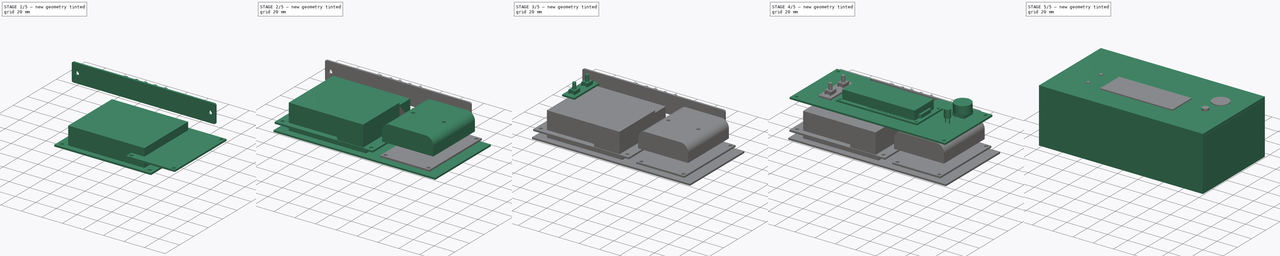
[diagram: build sequence overview — one tinted view per stage of 5, left to right]
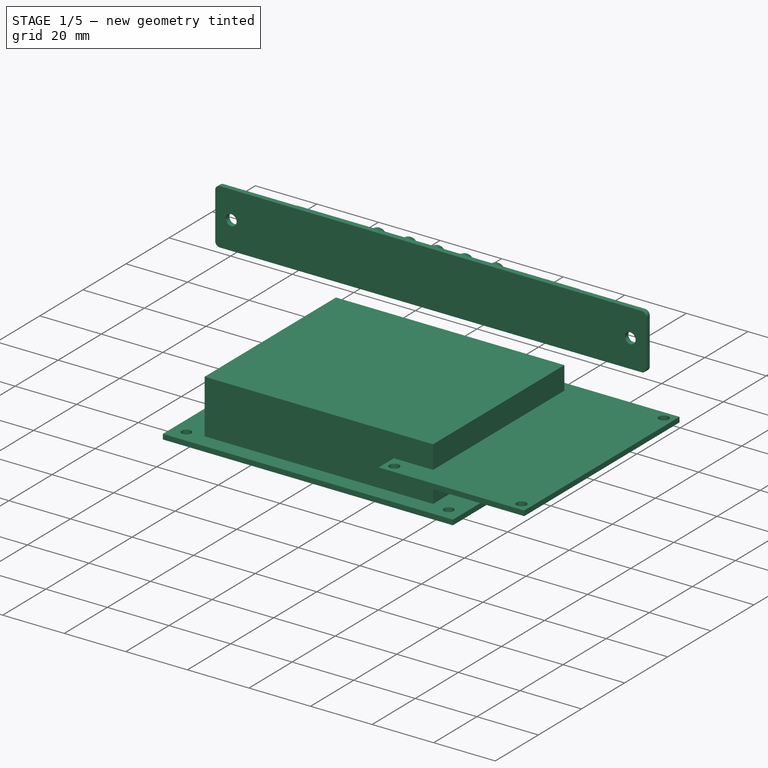
[diagram: stage 1 of 5 — iso view after this stage's code; geometry added in this stage tinted green]
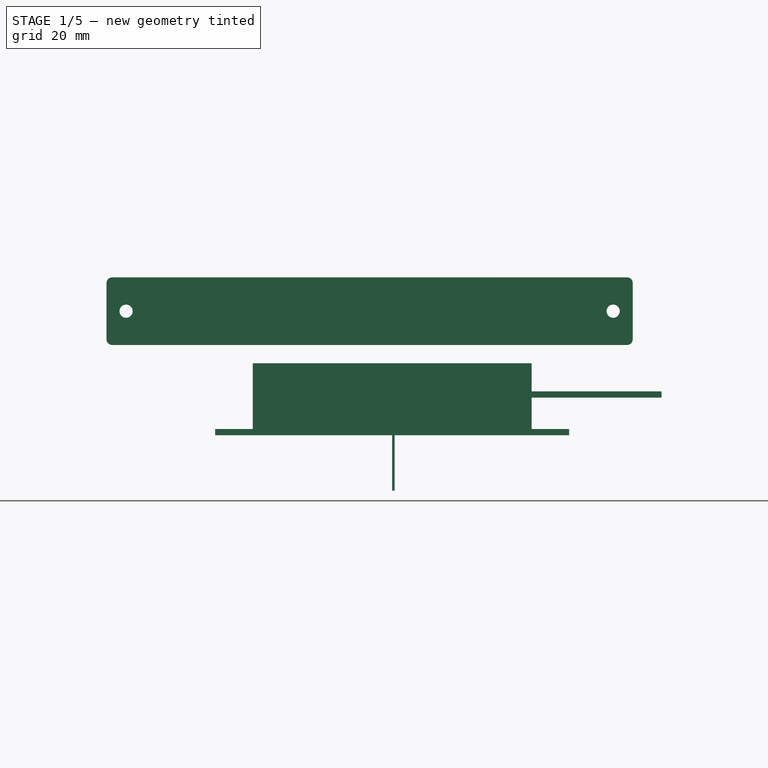
[diagram: stage 1 of 5 — front view after this stage's code; geometry added in this stage tinted green]
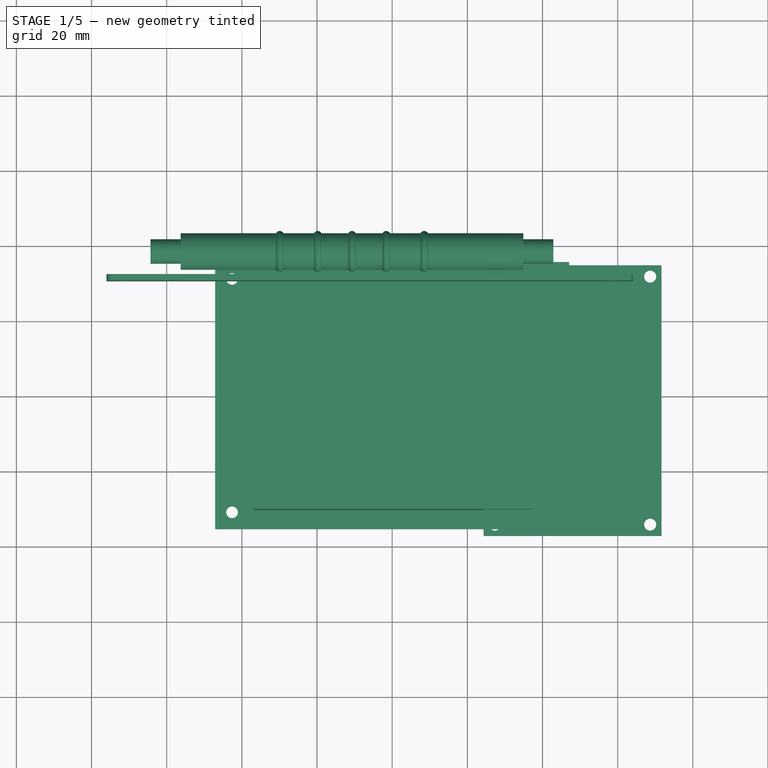
[diagram: stage 1 of 5 — top view after this stage's code; geometry added in this stage tinted green]
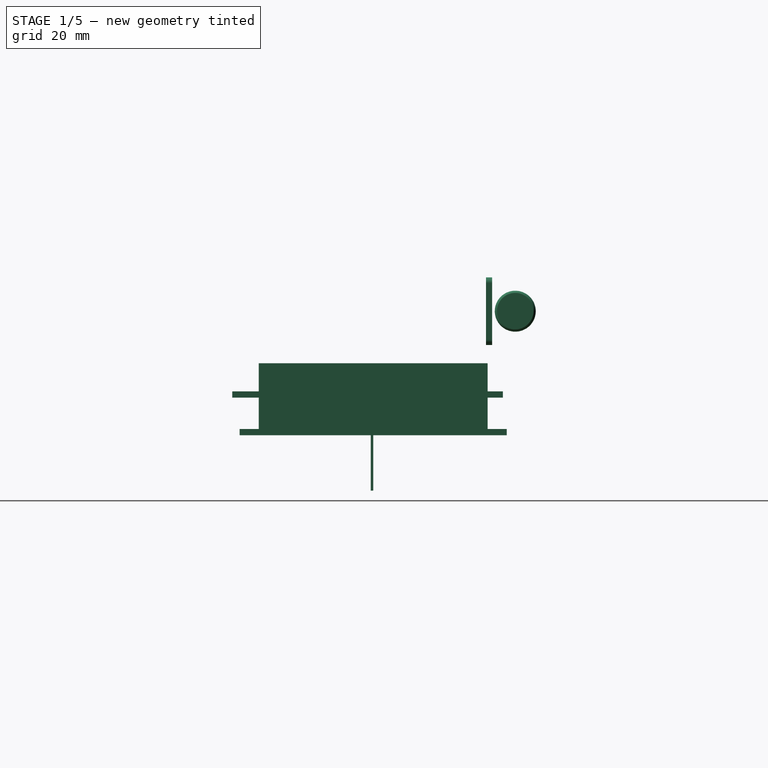
[diagram: stage 1 of 5 — right view after this stage's code; geometry added in this stage tinted green]
FCSTD DOCUMENT  (FreeCAD 0.16R6712 (Git))
Label: Assembly
License: All rights reserved
LicenseURL: http://en.wikipedia.org/wiki/All_rights_reserved
objects: Sketcher::SketchObject×29, PartDesign::Pad×24, Part::Fuse×9, PartDesign::Fillet×5, Part::Feature×5, App::MeasureDistance×5, App::DocumentObjectGroup×4, Part::Part2DObjectPython×3, App::FeaturePython×3, PartDesign::Pocket×2, Part::Cut×2, Spreadsheet::Sheet×1, PartDesign::Revolution×1, Part::Loft×1, Part::MultiFuse×1, Drawing::FeatureViewPart×1, Drawing::FeaturePage×1
note: 109 computed .brp shape members not serialized (recipe doc carries the construction recipe); baked Part::Feature solids carry a one-line shape summary decoded from their .brp

FEATURE [Sketcher::SketchObject] Sketch003
  expr: Constraints[13] = Data.BoardHoleRadius
  expr: Constraints[12] = Data.BoardHoleOffset
  expr: Constraints[9] = Data.MainBoardWidth
  expr: Constraints[14] = Data.BoardHoleOffset
  expr: Constraints[8] = Data.MainBoardLength
  sketch-geometry (8):
    g0: LineSegment StartX=-47.1 StartY=35.55 StartZ=0 EndX=47.1 EndY=35.55 EndZ=0
    g1: LineSegment StartX=47.1 StartY=35.55 StartZ=0 EndX=47.1 EndY=-35.55 EndZ=0
    g2: LineSegment StartX=47.1 StartY=-35.55 StartZ=0 EndX=-47.1 EndY=-35.55 EndZ=0
    g3: LineSegment StartX=-47.1 StartY=-35.55 StartZ=0 EndX=-47.1 EndY=35.55 EndZ=0
    g4: Circle CenterX=-42.6 CenterY=31.05 CenterZ=0 NormalX=0 NormalY=0 NormalZ=1 Radius=1.55
    g5: Circle CenterX=42.6 CenterY=31.05 CenterZ=0 NormalX=0 NormalY=0 NormalZ=1 Radius=1.55
    g6: Circle CenterX=42.6 CenterY=-31.05 CenterZ=0 NormalX=0 NormalY=0 NormalZ=1 Radius=1.55
    g7: Circle CenterX=-42.6 CenterY=-31.05 CenterZ=0 NormalX=0 NormalY=0 NormalZ=1 Radius=1.55
  constraints (19):
    c: Coincident(g0,g1)
    c: Coincident(g1,g2)
    c: Coincident(g2,g3)
    c: Coincident(g3,g0)
    c: Horizontal(g2)
    c: Vertical(g1)
    c: Symmetric(g0,g0,g-2)
    c: Symmetric(g0,g2,g-1)
    c: DistanceX(g0,g0) = 94.2
    c: DistanceY(g3,g3) = 71.1
    c: Symmetric(g4,g5,g-2)
    c: Symmetric(g4,g7,g-1)
    c: DistanceX(g0,g4) = 4.5
    c: Radius(g4) = 1.55
    c: DistanceY(g2,g7) = 4.5
    c: Equal(g4,g7)
    c: Equal(g4,g5)
    c: Equal(g4,g6)
    c: Symmetric(g6,g7,g-2)
FEATURE [PartDesign::Pad] Pad002
  Length = 1.65
  Length2 = 100
  Sketch = -> Sketch003
  Type = 0
  expr: Length = Data.PCBThick
FEATURE [Sketcher::SketchObject] Sketch004
  Placement = pos=(0,0,1.65) rot=(0,0,1;0rad)
  expr: Placement.Base.z = Data.PCBThick
  expr: Constraints[11] = Data.CompVolume2Width
  expr: Constraints[10] = Data.CompVolume2Length
  sketch-geometry (4):
    g0: LineSegment StartX=-37.1 StartY=30.45 StartZ=0 EndX=37.1 EndY=30.45 EndZ=0
    g1: LineSegment StartX=37.1 StartY=30.45 StartZ=0 EndX=37.1 EndY=-30.45 EndZ=0
    g2: LineSegment StartX=37.1 StartY=-30.45 StartZ=0 EndX=-37.1 EndY=-30.45 EndZ=0
    g3: LineSegment StartX=-37.1 StartY=-30.45 StartZ=0 EndX=-37.1 EndY=30.45 EndZ=0
  constraints (12):
    c: Coincident(g0,g1)
    c: Coincident(g1,g2)
    c: Coincident(g2,g3)
    c: Coincident(g3,g0)
    c: Horizontal(g0)
    c: Horizontal(g2)
    c: Vertical(g1)
    c: Vertical(g3)
    c: Symmetric(g0,g0,g-2)
    c: Symmetric(g0,g2,g-1)
    c: DistanceX(g0,g0) = 74.2
    c: DistanceY(g3,g3) = 60.9
FEATURE [PartDesign::Pad] Pad003
  Length = 17.5
  Length2 = 100
  Placement = pos=(0,0,1.65) rot=(0,0,1;0rad)
  Sketch = -> Sketch004
  Type = 0
  expr: Length = Data.BoardOverhead2
FEATURE [Sketcher::SketchObject] Sketch007
  Placement = pos=(-4.7,0,7.8) rot=(0,0,1;0rad)
  expr: Placement.Base.x = Data.TubeOffset - (Data.TubeBoardLength - Data.TubeLength) / 2
  expr: Placement.Base.z = Data.TubeDiameter / 2 + Data.PCBThick + Data.TubeRibWidth / 2 + 0.2
  expr: Constraints[46] = Data.TubeRibOffset
  expr: Constraints[30] = Data.TubeRibOffset
  expr: Constraints[11] = Data.TubeContactDiameter / 2
  expr: Constraints[15] = Data.TubeLength
  sketch-geometry (18):
    g0: LineSegment StartX=45.6 StartY=4.85 StartZ=0 EndX=45.6 EndY=3.25 EndZ=0
    g1: LineSegment StartX=45.6 StartY=3.25 StartZ=0 EndX=53.6 EndY=3.25 EndZ=0
    g2: LineSegment StartX=53.6 StartY=3.25 StartZ=0 EndX=53.6 EndY=0 EndZ=0
    g3: LineSegment StartX=53.6 StartY=0 StartZ=0 EndX=-53.6 EndY=0 EndZ=0
    g4: LineSegment StartX=-45.6 StartY=4.85 StartZ=0 EndX=-45.6 EndY=3.25 EndZ=0
    g5: LineSegment StartX=-45.6 StartY=3.25 StartZ=0 EndX=-53.6 EndY=3.25 EndZ=0
    g6: LineSegment StartX=-53.6 StartY=3.25 StartZ=0 EndX=-53.6 EndY=0 EndZ=0
    g7: ArcOfCircle CenterX=0 CenterY=4.35 CenterZ=0 NormalX=0 NormalY=0 NormalZ=1 Radius=1.1 StartAngle=0.471862 EndAngle=2.66973
    g8: LineSegment StartX=-0.979796 StartY=4.85 StartZ=0 EndX=-8.14041 EndY=4.85 EndZ=0
    g9: LineSegment StartX=-10.1 StartY=4.85 StartZ=0 EndX=-18.2404 EndY=4.85 EndZ=0
    g10: LineSegment StartX=-45.6 StartY=4.85 StartZ=0 EndX=-20.2 EndY=4.85 EndZ=0
    g11: ArcOfCircle CenterX=-19.2202 CenterY=4.35 CenterZ=0 NormalX=0 NormalY=0 NormalZ=1 Radius=1.1 StartAngle=0.471862 EndAngle=2.66973
    g12: ArcOfCircle CenterX=-9.1202 CenterY=4.35 CenterZ=0 NormalX=0 NormalY=0 NormalZ=1 Radius=1.1 StartAngle=0.471862 EndAngle=2.66973
    g13: LineSegment StartX=0.979796 StartY=4.85 StartZ=0 EndX=8.14041 EndY=4.85 EndZ=0
    g14: LineSegment StartX=10.1 StartY=4.85 StartZ=0 EndX=18.2404 EndY=4.85 EndZ=0
    g15: LineSegment StartX=45.6 StartY=4.85 StartZ=0 EndX=20.2 EndY=4.85 EndZ=0
    g16: ArcOfCircle CenterX=19.2202 CenterY=4.35 CenterZ=0 NormalX=0 NormalY=0 NormalZ=1 Radius=1.1 StartAngle=0.471862 EndAngle=2.66973
    g17: ArcOfCircle CenterX=9.1202 CenterY=4.35 CenterZ=0 NormalX=0 NormalY=0 NormalZ=1 Radius=1.1 StartAngle=0.471862 EndAngle=2.66973
  constraints (57):
    c: Vertical(g0)
    c: Coincident(g1,g0)
    c: Horizontal(g1)
    c: PointOnObject(g2,g-1)
    c: Vertical(g2)
    c: Horizontal(g3)
    c: Coincident(g4,g5)
    c: Horizontal(g5)
    c: Coincident(g5,g6)
    c: Vertical(g6)
    c: Vertical(g4)
    c: DistanceY(g6,g6) = 3.25
    c: Coincident(g2,g1)
    c: Coincident(g2,g3)
    c: Coincident(g3,g6)
    c: DistanceX(g3,g2) = 107.2
    c: DistanceX(g4,g0) = 91.2
    c: Equal(g5,g1)
    c: Equal(g6,g2)
    c: Equal(g0,g4)
    c: DistanceY(g4,g4) = 1.6
    c: Symmetric(g3,g2,g-2)
    c: Symmetric(g7,g7,g-2)
    c: DistanceY(g7,g7) = 0.5
    c: Radius(g7) = 1.1
    c: Coincident(g8,g7)
    c: Horizontal(g8)
    c: Horizontal(g9)
    c: Coincident(g10,g4)
    c: Horizontal(g10)
    c: DistanceX(g10,g10) = 25.4
    c: Coincident(g11,g10)
    c: Coincident(g11,g9)
    c: Radius(g11) = 1.1
    c: DistanceY(g10,g11) = -0.5
    c: Coincident(g12,g9)
    c: Coincident(g12,g8)
    c: Radius(g12) = 1.1
    c: DistanceY(g12,g9) = 0.5
    c: DistanceY(g9,g10) = 0
    c: DistanceX(g11,g12) = 10.1
    c: Coincident(g13,g7)
    c: Horizontal(g13)
    c: Horizontal(g14)
    c: Coincident(g15,g0)
    c: Horizontal(g15)
    c: DistanceX(g15,g15) = 25.4
    c: Coincident(g16,g14)
    c: Coincident(g16,g15)
    c: Coincident(g17,g14)
    c: Coincident(g17,g13)
    c: Radius(g17) = 1.1
    c: DistanceY(g13,g17) = -0.5
    c: DistanceY(g9,g8) = 0
    c: Symmetric(g13,g8,g-2)
    c: Symmetric(g14,g9,g-2)
    c: Symmetric(g16,g11,g-2)
FEATURE [PartDesign::Revolution] Revolution  label="Tube"
  Angle = 360
  Axis = (1,0,0)
  Base = (-4.7,0,7.8)
  Placement = pos=(-4.7,0,7.8) rot=(0,0,1;0rad)
  ReferenceAxis = -> Sketch007 [H_Axis]
  Sketch = -> Sketch007
FEATURE [Sketcher::SketchObject] Sketch008
  expr: Constraints[15] = Data.TubeBoardHoleOffset
  expr: Constraints[11] = Data.TubeBoardLength
  expr: Constraints[16] = Data.TubeBoardHoleD / 2
  expr: Constraints[10] = Data.TubeBoardWidth
  sketch-geometry (6):
    g0: LineSegment StartX=-70 StartY=9 StartZ=0 EndX=70 EndY=9 EndZ=0
    g1: LineSegment StartX=70 StartY=9 StartZ=0 EndX=70 EndY=-9 EndZ=0
    g2: LineSegment StartX=70 StartY=-9 StartZ=0 EndX=-70 EndY=-9 EndZ=0
    g3: LineSegment StartX=-70 StartY=-9 StartZ=0 EndX=-70 EndY=9 EndZ=0
    g4: Circle CenterX=-64.8 CenterY=0 CenterZ=0 NormalX=0 NormalY=0 NormalZ=1 Radius=1.75
    g5: Circle CenterX=64.8 CenterY=0 CenterZ=0 NormalX=0 NormalY=0 NormalZ=1 Radius=1.75
  constraints (18):
    c: Coincident(g0,g1)
    c: Coincident(g1,g2)
    c: Coincident(g2,g3)
    c: Coincident(g3,g0)
    c: Horizontal(g0)
    c: Horizontal(g2)
    c: Vertical(g1)
    c: Vertical(g3)
    c: Symmetric(g0,g0,g-2)
    c: Symmetric(g2,g0,g-1)
    c: DistanceY(g3,g3) = 18
    c: DistanceX(g0,g0) = 140
    c: PointOnObject(g5,g-1)
    c: PointOnObject(g4,g-1)
    c: Symmetric(g4,g5,g-2)
    c: DistanceX(g2,g4) = 5.2
    c: Radius(g4) = 1.75
    c: Equal(g4,g5)
FEATURE [PartDesign::Pad] Pad006  label="TubeBoardDef"
  Length = 1.65
  Length2 = 100
  Sketch = -> Sketch008
  Type = 0
  expr: Length = Data.PCBThick
FEATURE [PartDesign::Fillet] Fillet
  Base = -> Pad006 [Edge8,Edge1,Edge2,Edge5]
  Radius = 1.5
FEATURE [Part::Fuse] Fusion003  label="TubeAssembly"
  Base = -> Revolution
  Placement = pos=(-6,30,33) rot=(-1,0,0;1.5708rad)
  Tool = -> Fillet
FEATURE [Sketcher::SketchObject] Sketch012
  Placement = pos=(0,0,0) rot=(0.57735,0.57735,0.57735;2.0944rad)
  expr: Constraints[15] = Data.TubeConnectorPinThick
  expr: Constraints[14] = Data.TubeConnectorPinThick
  expr: Constraints[13] = Data.TubeConnectorLong
  expr: Constraints[12] = Data.TubeConnectShort
  sketch-geometry (6):
    g0: LineSegment StartX=-0.65 StartY=-14.75 StartZ=0 EndX=-0.65 EndY=0.65 EndZ=0
    g1: LineSegment StartX=-0.65 StartY=0.65 StartZ=0 EndX=8.45 EndY=0.65 EndZ=0
    g2: LineSegment StartX=8.45 StartY=0.65 StartZ=0 EndX=8.45 EndY=0 EndZ=0
    g3: LineSegment StartX=8.45 StartY=0 StartZ=0 EndX=0 EndY=0 EndZ=0
    g4: LineSegment StartX=0 StartY=0 StartZ=0 EndX=0 EndY=-14.75 EndZ=0
    g5: LineSegment StartX=0 StartY=-14.75 StartZ=0 EndX=-0.65 EndY=-14.75 EndZ=0
  constraints (17):
    c: Vertical(g0)
    c: Coincident(g0,g1)
    c: Horizontal(g1)
    c: Coincident(g1,g2)
    c: Coincident(g2,g3)
    c: Horizontal(g3)
    c: Coincident(g3,g4)
    c: Vertical(g4)
    c: Coincident(g4,g5)
    c: Coincident(g5,g0)
    c: Horizontal(g5)
    c: Vertical(g2)
    c: DistanceX(g1,g1) = 9.1
    c: DistanceY(g0,g0) = 15.4
    c: DistanceY(g2,g2) = 0.65
    c: DistanceX(g5,g5) = 0.65
    c: Coincident(g3,g-1)
FEATURE [PartDesign::Pad] Pad010  label="LongPinDef"
  Length = 0.65
  Length2 = 100
  Placement = pos=(0,0,0) rot=(0.57735,0.57735,0.57735;2.0944rad)
  Sketch = -> Sketch012
  Type = 0
  expr: Length = Data.TubeConnectorPinThick
FEATURE [Sketcher::SketchObject] Sketch013
  Placement = pos=(0,0,0) rot=(0.57735,0.57735,0.57735;2.0944rad)
  expr: Constraints[15] = Data.TubeConnectorPinThick
  expr: Constraints[14] = Data.TubeConnectorPinThick
  sketch-geometry (6):
    g0: LineSegment StartX=-0.65 StartY=-12.45 StartZ=0 EndX=-0.65 EndY=0.65 EndZ=0
    g1: LineSegment StartX=-0.65 StartY=0.65 StartZ=0 EndX=5.95 EndY=0.65 EndZ=0
    g2: LineSegment StartX=5.95 StartY=0.65 StartZ=0 EndX=5.95 EndY=0 EndZ=0
    g3: LineSegment StartX=5.95 StartY=0 StartZ=0 EndX=0 EndY=0 EndZ=0
    g4: LineSegment StartX=0 StartY=0 StartZ=0 EndX=0 EndY=-12.45 EndZ=0
    g5: LineSegment StartX=0 StartY=-12.45 StartZ=0 EndX=-0.65 EndY=-12.45 EndZ=0
  constraints (17):
    c: Vertical(g0)
    c: Coincident(g0,g1)
    c: Horizontal(g1)
    c: Coincident(g1,g2)
    c: Coincident(g2,g3)
    c: Horizontal(g3)
    c: Coincident(g3,g4)
    c: Vertical(g4)
    c: Coincident(g4,g5)
    c: Coincident(g5,g0)
    c: Horizontal(g5)
    c: Vertical(g2)
    c: DistanceX(g1,g1) = 6.6
    c: DistanceY(g0,g0) = 13.1
    c: DistanceY(g2,g2) = 0.65
    c: DistanceX(g5,g5) = 0.65
    c: Coincident(g3,g-1)
FEATURE [PartDesign::Pad] Pad010002  label="ShortPinDef"
  Length = 0.65
  Length2 = 100
  Placement = pos=(0,0,0) rot=(0.57735,0.57735,0.57735;2.0944rad)
  Sketch = -> Sketch013
  Type = 0
  expr: Length = Data.TubeConnectorPinThick
FEATURE [Sketcher::SketchObject] Sketch027
  Placement = pos=(48,-1.5,10) rot=(0,0,1;0rad)
  sketch-geometry (8):
    g0: LineSegment StartX=-23.65 StartY=36 StartZ=0 EndX=23.65 EndY=36 EndZ=0
    g1: LineSegment StartX=23.65 StartY=36 StartZ=0 EndX=23.65 EndY=-36 EndZ=0
    g2: LineSegment StartX=23.65 StartY=-36 StartZ=0 EndX=-23.65 EndY=-36 EndZ=0
    g3: LineSegment StartX=-23.65 StartY=-36 StartZ=0 EndX=-23.65 EndY=36 EndZ=0
    g4: Circle CenterX=-20.65 CenterY=33 CenterZ=0 NormalX=0 NormalY=0 NormalZ=1 Radius=1.6
    g5: Circle CenterX=-20.65 CenterY=-33 CenterZ=0 NormalX=0 NormalY=0 NormalZ=1 Radius=1.6
    g6: Circle CenterX=20.65 CenterY=33 CenterZ=0 NormalX=0 NormalY=0 NormalZ=1 Radius=1.6
    g7: Circle CenterX=20.65 CenterY=-33 CenterZ=0 NormalX=0 NormalY=0 NormalZ=1 Radius=1.6
  constraints (21):
    c: Coincident(g0,g1)
    c: Coincident(g1,g2)
    c: Coincident(g2,g3)
    c: Coincident(g3,g0)
    c: Horizontal(g0)
    c: Horizontal(g2)
    c: Vertical(g1)
    c: Vertical(g3)
    c: Symmetric(g0,g1,g-1)
    c: Symmetric(g0,g0,g-2)
    c: DistanceX(g0,g0) = 47.3
    c: DistanceY(g3,g3) = 72
    c: Radius(g4) = 1.6
    c: Equal(g4,g5) = 1.6
    c: Equal(g4,g6) = 1.6
    c: Equal(g4,g7) = 1.6
    c: DistanceX(g0,g4) = 3
    c: DistanceY(g4,g0) = 3
    c: Symmetric(g4,g6,g-2)
    c: Symmetric(g4,g5,g-1)
    c: Symmetric(g5,g7,g-2)
FEATURE [PartDesign::Pad] Pad010002001017
  Length = 1.65
  Length2 = 100
  Placement = pos=(48,-1.5,10) rot=(0,0,1;0rad)
  Sketch = -> Sketch027
  Type = 0
  expr: Length = Data.PCBThick
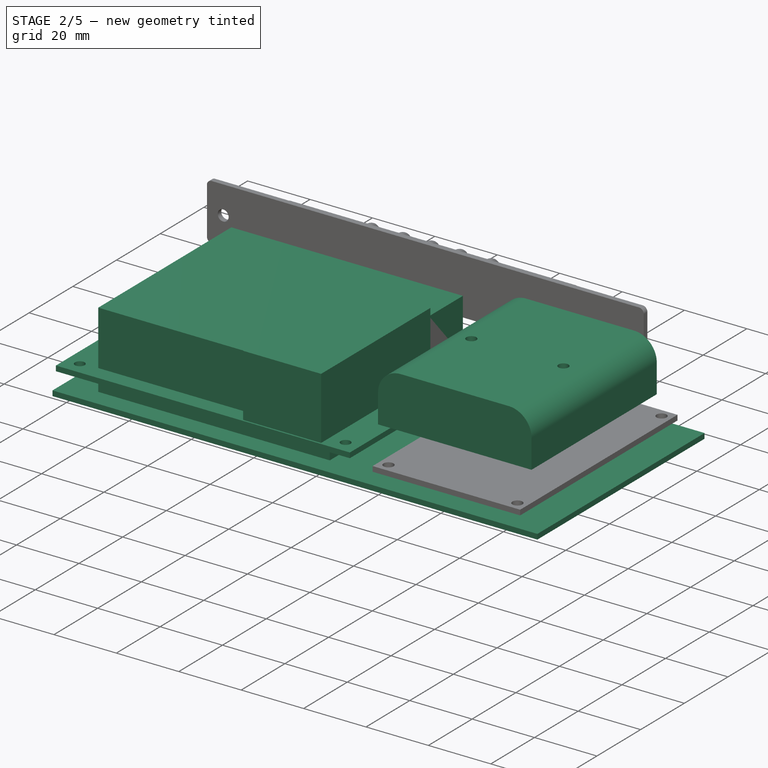
[diagram: stage 2 of 5 — iso view after this stage's code; geometry added in this stage tinted green]
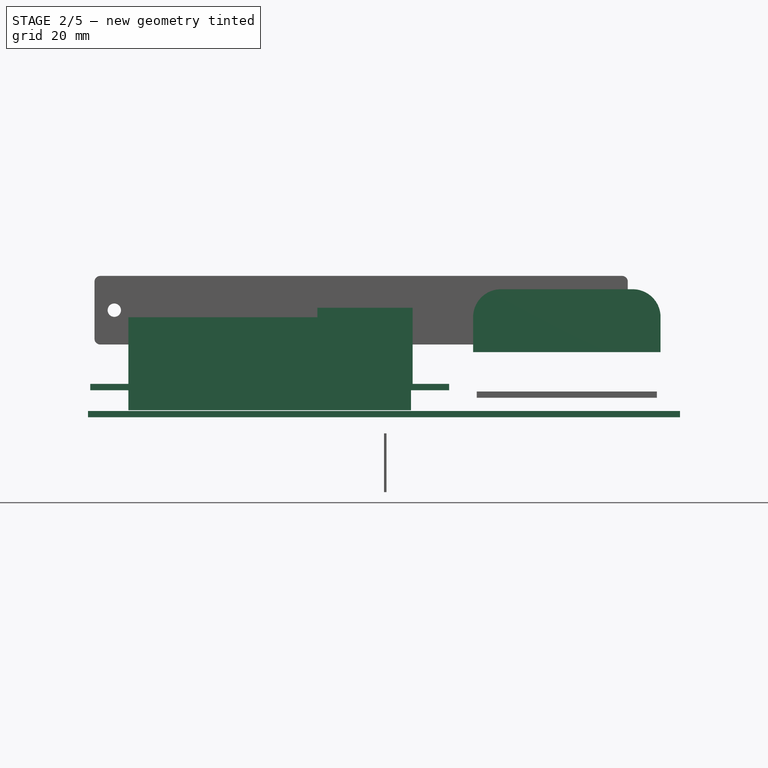
[diagram: stage 2 of 5 — front view after this stage's code; geometry added in this stage tinted green]
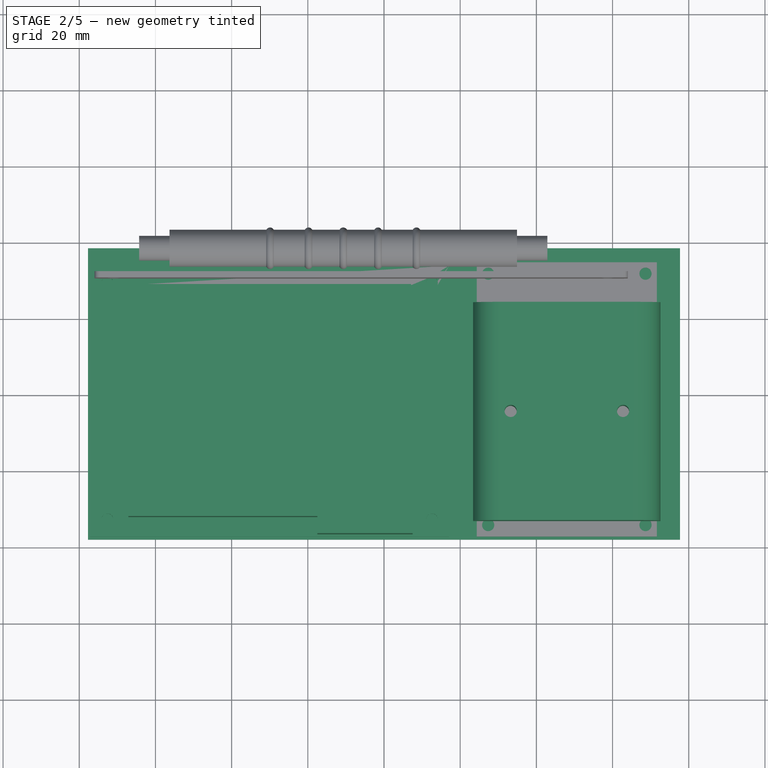
[diagram: stage 2 of 5 — top view after this stage's code; geometry added in this stage tinted green]
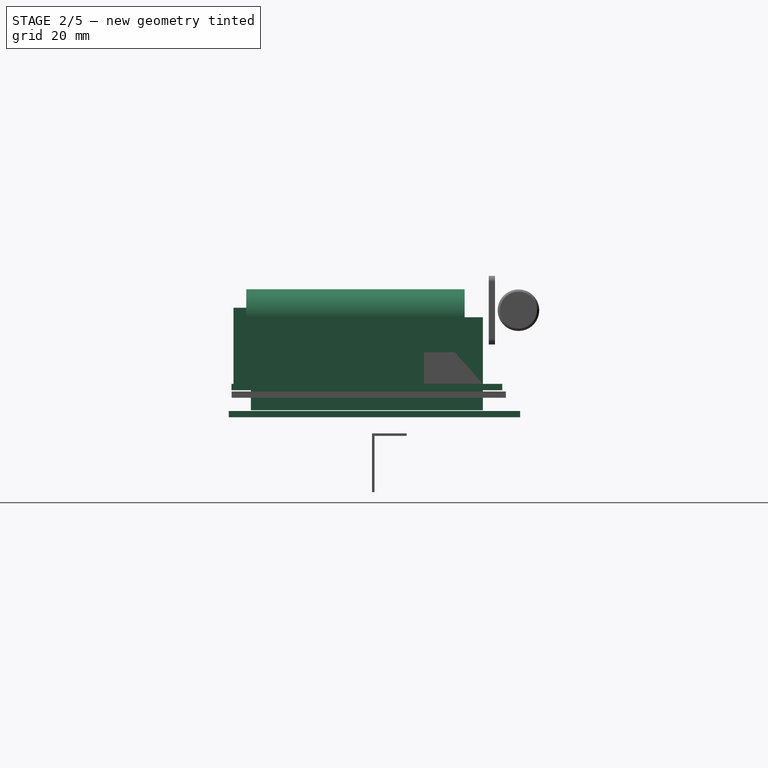
[diagram: stage 2 of 5 — right view after this stage's code; geometry added in this stage tinted green]
FEATURE [Sketcher::SketchObject] Sketch002
  Placement = pos=(0,0,4.9) rot=(0,0,1;0rad)
  expr: Placement.Base.z = Data.BottomThick
  expr: Constraints[11] = Data.InnerWidth
  expr: Constraints[10] = Data.InnerLength
  sketch-geometry (4):
    g0: LineSegment StartX=-77.7 StartY=38.25 StartZ=0 EndX=77.7 EndY=38.25 EndZ=0
    g1: LineSegment StartX=77.7 StartY=38.25 StartZ=0 EndX=77.7 EndY=-38.25 EndZ=0
    g2: LineSegment StartX=77.7 StartY=-38.25 StartZ=0 EndX=-77.7 EndY=-38.25 EndZ=0
    g3: LineSegment StartX=-77.7 StartY=-38.25 StartZ=0 EndX=-77.7 EndY=38.25 EndZ=0
  constraints (12):
    c: Coincident(g0,g1)
    c: Coincident(g1,g2)
    c: Coincident(g2,g3)
    c: Coincident(g3,g0)
    c: Horizontal(g0)
    c: Horizontal(g2)
    c: Vertical(g1)
    c: Vertical(g3)
    c: Symmetric(g0,g2,g-1)
    c: Symmetric(g0,g0,g-2)
    c: DistanceX(g0,g0) = 155.4
    c: DistanceY(g3,g3) = 76.5
FEATURE [PartDesign::Pad] Pad001  label="Chassis"
  Length = 1.65
  Length2 = 100
  Placement = pos=(0,0,4.9) rot=(0,0,1;0rad)
  Sketch = -> Sketch002
  Type = 0
  expr: Length = Data.PCBThick
FEATURE [Sketcher::SketchObject] Sketch005
  Placement = pos=(25,-10,1.65) rot=(0,0,1;0rad)
  expr: Placement.Base.z = Data.PCBThick
  expr: Constraints[11] = Data.BoardSpace1Width
  expr: Constraints[10] = Data.BoardSpace1Length
  sketch-geometry (4):
    g0: LineSegment StartX=-12.5 StartY=25 StartZ=0 EndX=12.5 EndY=25 EndZ=0
    g1: LineSegment StartX=12.5 StartY=25 StartZ=0 EndX=12.5 EndY=-25 EndZ=0
    g2: LineSegment StartX=12.5 StartY=-25 StartZ=0 EndX=-12.5 EndY=-25 EndZ=0
    g3: LineSegment StartX=-12.5 StartY=-25 StartZ=0 EndX=-12.5 EndY=25 EndZ=0
  constraints (12):
    c: Coincident(g0,g1)
    c: Coincident(g1,g2)
    c: Coincident(g2,g3)
    c: Coincident(g3,g0)
    c: Horizontal(g0)
    c: Horizontal(g2)
    c: Vertical(g1)
    c: Vertical(g3)
    c: Symmetric(g0,g0,g-2)
    c: Symmetric(g0,g2,g-1)
    c: DistanceX(g0,g0) = 25
    c: DistanceY(g3,g3) = 50
FEATURE [PartDesign::Pad] Pad004
  Length = 20
  Length2 = 100
  Placement = pos=(25,-10,1.65) rot=(0,0,1;0rad)
  Sketch = -> Sketch005
  Type = 0
  expr: Length = Data.BoardOverhead1
FEATURE [Sketcher::SketchObject] Sketch006
  Placement = pos=(0,0,-5.25) rot=(0,0,1;0rad)
  expr: Placement.Base.z = -Data.BoardUnderSpace + Data.PCBThick
  expr: Constraints[11] = Data.MainBoardWidth - Data.BoardSideMargin * 2
  expr: Constraints[10] = Data.MainBoardLength - 2 * Data.BoardTopMargin
  sketch-geometry (4):
    g0: LineSegment StartX=-37.1 StartY=30.45 StartZ=0 EndX=37.1 EndY=30.45 EndZ=0
    g1: LineSegment StartX=37.1 StartY=30.45 StartZ=0 EndX=37.1 EndY=-30.45 EndZ=0
    g2: LineSegment StartX=37.1 StartY=-30.45 StartZ=0 EndX=-37.1 EndY=-30.45 EndZ=0
    g3: LineSegment StartX=-37.1 StartY=-30.45 StartZ=0 EndX=-37.1 EndY=30.45 EndZ=0
  constraints (12):
    c: Coincident(g0,g1)
    c: Coincident(g1,g2)
    c: Coincident(g2,g3)
    c: Coincident(g3,g0)
    c: Horizontal(g0)
    c: Horizontal(g2)
    c: Vertical(g1)
    c: Vertical(g3)
    c: Symmetric(g0,g0,g-2)
    c: Symmetric(g0,g2,g-1)
    c: DistanceX(g0,g0) = 74.2
    c: DistanceY(g3,g3) = 60.9
FEATURE [PartDesign::Pad] Pad005
  Length = 6.9
  Length2 = 100
  Placement = pos=(0,0,-5.25) rot=(0,0,1;0rad)
  Sketch = -> Sketch006
  Type = 0
  expr: Length = Data.BoardUnderSpace
FEATURE [Part::Fuse] Fusion
  Base = -> Pad002
  Tool = -> Pad003
FEATURE [Part::Fuse] Fusion001
  Base = -> Fusion
  Tool = -> Pad004
FEATURE [Part::Fuse] Fusion002
  Base = -> Fusion001
  Placement = pos=(-30,-2,12) rot=(0,0,1;0rad)
  Tool = -> Pad005
FEATURE [Part::Fuse] Fusion004
  Base = -> Fusion002
  Tool = -> Fusion003
FEATURE [App::DocumentObjectGroup] Group002  label="Front"
  Group = -> [Pad010002001009,Pad010002001010,Fusion006,Fusion008,Pad010002001011,Fusion009002]
FEATURE [Sketcher::SketchObject] Sketch026
  Placement = pos=(48,-5,22) rot=(0,0,1;1.5708rad)
  sketch-geometry (6):
    g0: LineSegment StartX=-28.65 StartY=24.6 StartZ=0 EndX=28.65 EndY=24.6 EndZ=0
    g1: LineSegment StartX=28.65 StartY=24.6 StartZ=0 EndX=28.65 EndY=-24.6 EndZ=0
    g2: LineSegment StartX=28.65 StartY=-24.6 StartZ=0 EndX=-28.65 EndY=-24.6 EndZ=0
    g3: LineSegment StartX=-28.65 StartY=-24.6 StartZ=0 EndX=-28.65 EndY=24.6 EndZ=0
    g4: Circle CenterX=0 CenterY=14.75 CenterZ=0 NormalX=0 NormalY=0 NormalZ=1 Radius=1.6
    g5: Circle CenterX=0 CenterY=-14.75 CenterZ=0 NormalX=0 NormalY=0 NormalZ=1 Radius=1.6
  constraints (18):
    c: Coincident(g0,g1)
    c: Coincident(g1,g2)
    c: Coincident(g2,g3)
    c: Coincident(g3,g0)
    c: Horizontal(g0)
    c: Horizontal(g2)
    c: Vertical(g1)
    c: Vertical(g3)
    c: Symmetric(g0,g0,g-2)
    c: Symmetric(g0,g2,g-1)
    c: DistanceX(g0,g0) = 57.3
    c: DistanceY(g3,g3) = 49.2
    c: PointOnObject(g4,g-2)
    c: PointOnObject(g5,g-2)
    c: Symmetric(g5,g4,g-1)
    c: DistanceY(g5,g4) = 29.5
    c: Radius(g4) = 1.6
    c: Equal(g4,g5)
FEATURE [PartDesign::Pad] Pad010002001016
  Length = 16.5
  Length2 = 100
  Placement = pos=(48,-5,22) rot=(0,0,1;1.5708rad)
  Sketch = -> Sketch026
  Type = 0
FEATURE [PartDesign::Fillet] Fillet004
  Base = -> Pad010002001016 [Edge10,Edge4]
  Placement = pos=(48,-5,22) rot=(0,0,1;1.5708rad)
  Radius = 7.3
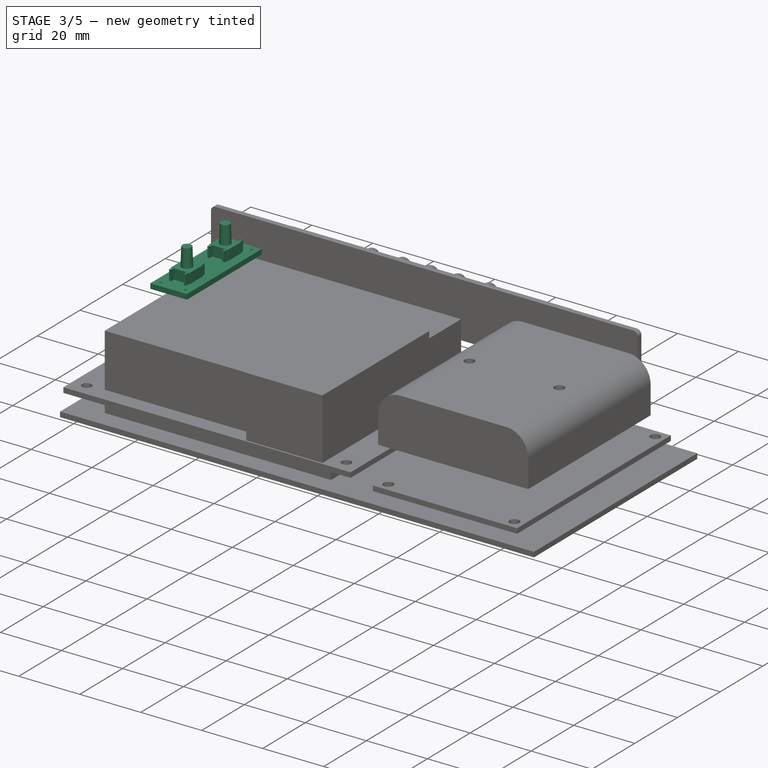
[diagram: stage 3 of 5 — iso view after this stage's code; geometry added in this stage tinted green]
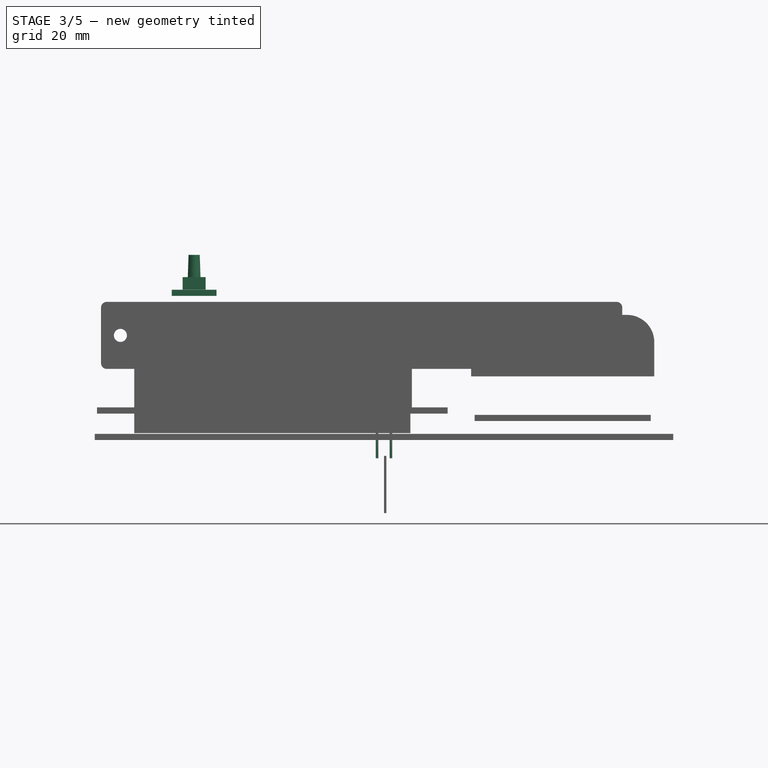
[diagram: stage 3 of 5 — front view after this stage's code; geometry added in this stage tinted green]
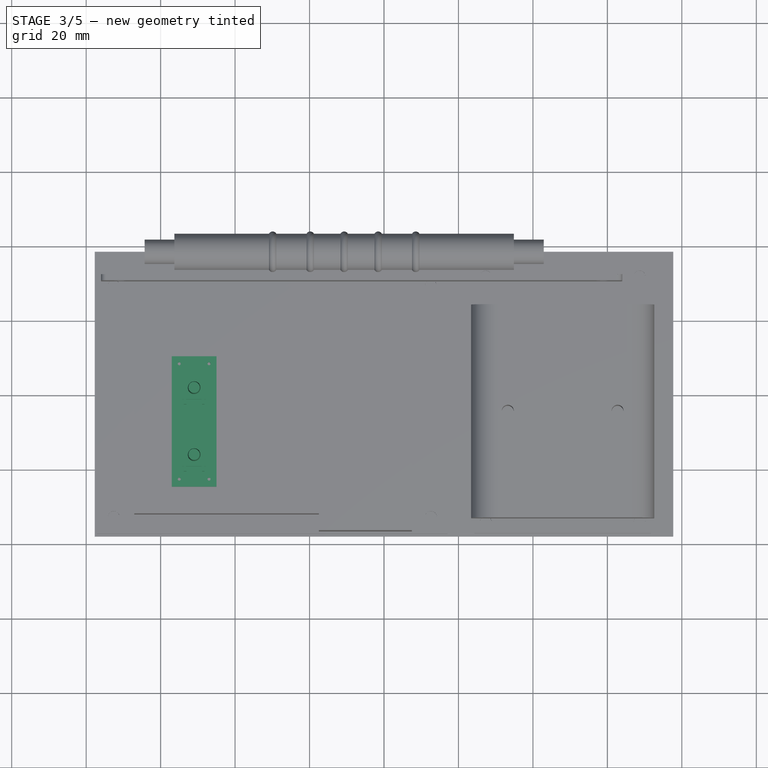
[diagram: stage 3 of 5 — top view after this stage's code; geometry added in this stage tinted green]
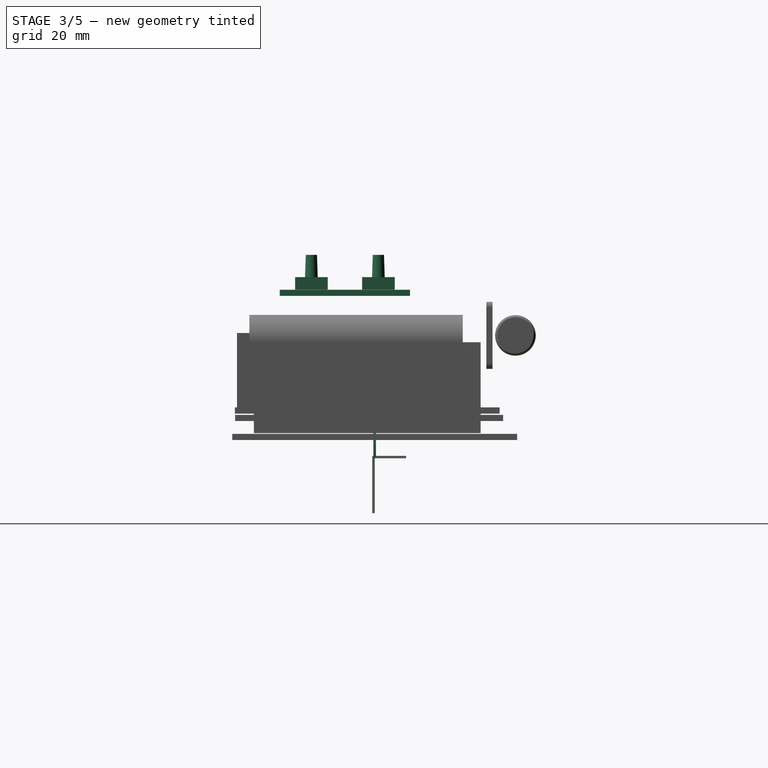
[diagram: stage 3 of 5 — right view after this stage's code; geometry added in this stage tinted green]
FEATURE [Sketcher::SketchObject] Sketch020
  Placement = pos=(0,0,10) rot=(0,0,1;0rad)
  sketch-geometry (1):
    g0: Circle CenterX=0 CenterY=0 CenterZ=0 NormalX=0 NormalY=0 NormalZ=1 Radius=3
  constraints (2):
    c: Coincident(g0,g-1)
    c: Radius(g0) = 3
FEATURE [PartDesign::Pad] Pad010002001012
  Length = 7.8
  Length2 = 100
  Placement = pos=(0,0,10) rot=(0,0,1;0rad)
  Sketch = -> Sketch020
  Type = 0
FEATURE [Sketcher::SketchObject] Sketch021
  sketch-geometry (8):
    g0: LineSegment StartX=-1.5 StartY=0.35 StartZ=0 EndX=-2.2 EndY=0.35 EndZ=0
    g1: LineSegment StartX=-2.2 StartY=0.35 StartZ=0 EndX=-2.2 EndY=-0.35 EndZ=0
    g2: LineSegment StartX=-2.2 StartY=-0.35 StartZ=0 EndX=-1.5 EndY=-0.35 EndZ=0
    g3: LineSegment StartX=-1.5 StartY=-0.35 StartZ=0 EndX=-1.5 EndY=0.35 EndZ=0
    g4: LineSegment StartX=2.2 StartY=0.35 StartZ=0 EndX=1.5 EndY=0.35 EndZ=0
    g5: LineSegment StartX=1.5 StartY=0.35 StartZ=0 EndX=1.5 EndY=-0.35 EndZ=0
    g6: LineSegment StartX=1.5 StartY=-0.35 StartZ=0 EndX=2.2 EndY=-0.35 EndZ=0
    g7: LineSegment StartX=2.2 StartY=-0.35 StartZ=0 EndX=2.2 EndY=0.35 EndZ=0
  constraints (23):
    c: Coincident(g0,g1)
    c: Coincident(g1,g2)
    c: Coincident(g2,g3)
    c: Coincident(g3,g0)
    c: Horizontal(g0)
    c: Horizontal(g2)
    c: Vertical(g1)
    c: Vertical(g3)
    c: Coincident(g4,g5)
    c: Coincident(g5,g6)
    c: Coincident(g6,g7)
    c: Coincident(g7,g4)
    c: Horizontal(g4)
    c: Horizontal(g6)
    c: Vertical(g5)
    c: Vertical(g7)
    c: Equal(g3,g0)
    c: Equal(g1,g7)
    c: Equal(g7,g4)
    c: Symmetric(g0,g4,g-2)
    c: DistanceY(g3,g3) = 0.7
    c: Symmetric(g1,g0,g-1)
    c: DistanceX(g2,g5) = 3
FEATURE [PartDesign::Pad] Pad010002001013
  Length = 10
  Length2 = 100
  Sketch = -> Sketch021
  Type = 0
FEATURE [Sketcher::SketchObject] Sketch022
  sketch-geometry (20):
    g0: LineSegment StartX=-3.085 StartY=3.085 StartZ=0 EndX=3.085 EndY=3.085 EndZ=0
    g1: LineSegment StartX=3.085 StartY=3.085 StartZ=0 EndX=3.085 EndY=-3.085 EndZ=0
    g2: LineSegment StartX=3.085 StartY=-3.085 StartZ=0 EndX=-3.085 EndY=-3.085 EndZ=0
    g3: LineSegment StartX=-3.085 StartY=-3.085 StartZ=0 EndX=-3.085 EndY=3.085 EndZ=0
    g4: LineSegment StartX=-2.785 StartY=4.385 StartZ=0 EndX=-2.085 EndY=4.385 EndZ=0
    g5: LineSegment StartX=-2.085 StartY=4.385 StartZ=0 EndX=-2.085 EndY=3.085 EndZ=0
    g6: LineSegment StartX=-2.085 StartY=3.085 StartZ=0 EndX=-2.785 EndY=3.085 EndZ=0
    g7: LineSegment StartX=-2.785 StartY=3.085 StartZ=0 EndX=-2.785 EndY=4.385 EndZ=0
    g8: LineSegment StartX=2.085 StartY=4.385 StartZ=0 EndX=2.785 EndY=4.385 EndZ=0
    g9: LineSegment StartX=2.785 StartY=4.385 StartZ=0 EndX=2.785 EndY=3.085 EndZ=0
    g10: LineSegment StartX=2.785 StartY=3.085 StartZ=0 EndX=2.085 EndY=3.085 EndZ=0
    g11: LineSegment StartX=2.085 StartY=3.085 StartZ=0 EndX=2.085 EndY=4.385 EndZ=0
    g12: LineSegment StartX=-2.785 StartY=-3.085 StartZ=0 EndX=-2.085 EndY=-3.085 EndZ=0
    g13: LineSegment StartX=-2.085 StartY=-3.085 StartZ=0 EndX=-2.085 EndY=-4.385 EndZ=0
    g14: LineSegment StartX=-2.085 StartY=-4.385 StartZ=0 EndX=-2.785 EndY=-4.385 EndZ=0
    g15: LineSegment StartX=-2.785 StartY=-4.385 StartZ=0 EndX=-2.785 EndY=-3.085 EndZ=0
    g16: LineSegment StartX=2.085 StartY=-3.085 StartZ=0 EndX=2.785 EndY=-3.085 EndZ=0
    g17: LineSegment StartX=2.785 StartY=-3.085 StartZ=0 EndX=2.785 EndY=-4.385 EndZ=0
    g18: LineSegment StartX=2.785 StartY=-4.385 StartZ=0 EndX=2.085 EndY=-4.385 EndZ=0
    g19: LineSegment StartX=2.085 StartY=-4.385 StartZ=0 EndX=2.085 EndY=-3.085 EndZ=0
  constraints (57):
    c: Coincident(g0,g1)
    c: Coincident(g1,g2)
    c: Coincident(g2,g3)
    c: Coincident(g3,g0)
    c: Horizontal(g2)
    c: Vertical(g1)
    c: Vertical(g3)
    c: Symmetric(g0,g0,g-2)
    c: Symmetric(g0,g2,g-1)
    c: Equal(g0,g3)
    c: DistanceX(g0,g0) = 6.17
    c: Coincident(g4,g5)
    c: Coincident(g5,g6)
    c: Coincident(g6,g7)
    c: Coincident(g7,g4)
    c: Horizontal(g4)
    c: Horizontal(g6)
    c: Vertical(g5)
    c: Vertical(g7)
    c: Coincident(g8,g9)
    c: Coincident(g9,g10)
    c: Coincident(g10,g11)
    c: Coincident(g11,g8)
    c: Horizontal(g8)
    c: Horizontal(g10)
    c: Vertical(g9)
    c: Vertical(g11)
    c: Coincident(g12,g13)
    c: Coincident(g13,g14)
    c: Coincident(g14,g15)
    c: Coincident(g15,g12)
    c: Horizontal(g12)
    c: Horizontal(g14)
    c: Vertical(g13)
    c: Vertical(g15)
    c: Coincident(g16,g17)
    c: Coincident(g17,g18)
    c: Coincident(g18,g19)
    c: Coincident(g19,g16)
    c: Horizontal(g16)
    c: Horizontal(g18)
    c: Vertical(g17)
    c: Vertical(g19)
    c: PointOnObject(g12,g2)
    c: PointOnObject(g16,g2)
    c: PointOnObject(g10,g0)
    c: Equal(g7,g11)
    c: Equal(g7,g15)
    c: Equal(g7,g19)
    c: Equal(g4,g8)
    c: Equal(g8,g14)
    c: Equal(g14,g18)
    c: DistanceX(g4,g4) = 0.7
    c: Symmetric(g5,g10,g-2)
    c: DistanceX(g0,g6) = 0.3
    c: DistanceY(g5,g5) = 1.3
    c: Symmetric(g6,g12,g-1)
FEATURE [PartDesign::Pad] Pad010002001014
  Length = 3.34
  Length2 = 100
  Sketch = -> Sketch022
  Type = 0
FEATURE [Sketcher::SketchObject] Sketch023
  sketch-geometry (1):
    g0: Circle CenterX=0 CenterY=0 CenterZ=0 NormalX=0 NormalY=0 NormalZ=1 Radius=1.705
  constraints (2):
    c: Coincident(g0,g-1)
    c: Radius(g0) = 1.705
FEATURE [Sketcher::SketchObject] Sketch024
  Placement = pos=(0,0,6) rot=(0,0,1;0rad)
  sketch-geometry (1):
    g0: Circle CenterX=0 CenterY=0 CenterZ=0 NormalX=0 NormalY=0 NormalZ=1 Radius=1.505
  constraints (2):
    c: Coincident(g0,g-1)
    c: Radius(g0) = 1.505
FEATURE [Part::Loft] Loft
  Closed = false
  Placement = pos=(0,0,3.34) rot=(0,0,1;0rad)
  Ruled = false
  Sections = -> [Sketch023,Sketch024]
  Solid = true
FEATURE [Part::Fuse] Fusion009  label="DisplayButton"
  Base = -> Loft
  Placement = pos=(49,1,45.3) rot=(0,0,1;0rad)
  Tool = -> Pad010002001014
FEATURE [Part::Feature] Fusion009001  label="DisplayButton001"
  Placement = pos=(49,-17,45.3) rot=(0,0,1;0rad)
  shape: bbox 6.17 x 8.77 x 9.34 mm, 32 faces, 5 solids (baked)
FEATURE [Sketcher::SketchObject] Sketch025
  Placement = pos=(49,-8,43.6) rot=(0,0,1;0rad)
  sketch-geometry (8):
    g0: LineSegment StartX=-6 StartY=17.5 StartZ=0 EndX=6 EndY=17.5 EndZ=0
    g1: LineSegment StartX=6 StartY=17.5 StartZ=0 EndX=6 EndY=-17.5 EndZ=0
    g2: LineSegment StartX=6 StartY=-17.5 StartZ=0 EndX=-6 EndY=-17.5 EndZ=0
    g3: LineSegment StartX=-6 StartY=-17.5 StartZ=0 EndX=-6 EndY=17.5 EndZ=0
    g4: Circle CenterX=-4 CenterY=15.5 CenterZ=0 NormalX=0 NormalY=0 NormalZ=1 Radius=0.4
    g5: Circle CenterX=4 CenterY=15.5 CenterZ=0 NormalX=0 NormalY=0 NormalZ=1 Radius=0.4
    g6: Circle CenterX=-4 CenterY=-15.5 CenterZ=0 NormalX=0 NormalY=0 NormalZ=1 Radius=0.4
    g7: Circle CenterX=4 CenterY=-15.5 CenterZ=0 NormalX=0 NormalY=0 NormalZ=1 Radius=0.4
  constraints (21):
    c: Coincident(g0,g1)
    c: Coincident(g1,g2)
    c: Coincident(g2,g3)
    c: Coincident(g3,g0)
    c: Horizontal(g0)
    c: Horizontal(g2)
    c: Vertical(g1)
    c: Vertical(g3)
    c: Symmetric(g0,g0,g-2)
    c: Symmetric(g0,g2,g-1)
    c: DistanceY(g3,g3) = 35
    c: DistanceX(g2,g2) = 12
    c: Radius(g4) = 0.4
    c: Equal(g4,g5) = 0.4
    c: Equal(g4,g6) = 0.4
    c: Equal(g4,g7) = 0.4
    c: DistanceX(g0,g4) = 2
    c: DistanceY(g4,g0) = 2
    c: Symmetric(g4,g5,g-2)
    c: Symmetric(g4,g6,g-1)
    c: Symmetric(g6,g7,g-2)
FEATURE [PartDesign::Pad] Pad010002001015
  Length = 1.65
  Length2 = 100
  Placement = pos=(49,-8,43.6) rot=(0,0,1;0rad)
  Sketch = -> Sketch025
  Type = 0
  expr: Length = Data.PCBThick
FEATURE [Part::MultiFuse] Fusion009002  label="DisplayButtonsAssembly"
  Placement = pos=(-100,0,0) rot=(0,0,1;0rad)
  Shapes = -> [Pad010002001015,Fusion009001,Fusion009]
FEATURE [PartDesign::Fillet] Fillet003
  Base = -> Pad010002001016 [Edge4,Edge10]
  Placement = pos=(48,-5,22) rot=(0,0,1;1.5708rad)
  Radius = 7.7
FEATURE [Sketcher::SketchObject] Sketch028
  Placement = pos=(48,-5,38.5) rot=(0,0,1;1.5708rad)
  Support = -> Fillet004 [Face8]
  sketch-geometry (4):
    g0: LineSegment StartX=-26.8389 StartY=16.3591 StartZ=0 EndX=26.8389 EndY=16.3591 EndZ=0
    g1: LineSegment StartX=26.8389 StartY=16.3591 StartZ=0 EndX=26.8389 EndY=-16.3591 EndZ=0
    g2: LineSegment StartX=26.8389 StartY=-16.3591 StartZ=0 EndX=-26.8389 EndY=-16.3591 EndZ=0
    g3: LineSegment StartX=-26.8389 StartY=-16.3591 StartZ=0 EndX=-26.8389 EndY=16.3591 EndZ=0
  constraints (12):
    c: Coincident(g0,g1)
    c: Coincident(g1,g2)
    c: Coincident(g2,g3)
    c: Coincident(g3,g0)
    c: Horizontal(g0)
    c: Horizontal(g2)
    c: Vertical(g1)
    c: Vertical(g3)
    c: Symmetric(g0,g0,g-2)
    c: Symmetric(g0,g2,g-1)
    c: DistanceY(g3,g3) = 32.7182
    c: DistanceX(g0,g0) = 53.6778
FEATURE [PartDesign::Pocket] Pocket001
  Length = 14
  Placement = pos=(48,-5,22) rot=(0,0,1;1.5708rad)
  Sketch = -> Sketch028
  Type = 0
FEATURE [Part::Part2DObjectPython] Shape2DView  # Draft 2D object (typed FeaturePython)
  Base = -> Pad001
  HiddenLines = false
  Projection = (0,0,1)
  ProjectionMode = 0
  SegmentLength = 0.05
  Tessellation = false
FEATURE [Part::Part2DObjectPython] Shape2DView001  # Draft 2D object (typed FeaturePython)
  Base = -> Group
  HiddenLines = false
  Projection = (0,0,1)
  ProjectionMode = 0
  SegmentLength = 0.05
  Tessellation = false
FEATURE [Part::Part2DObjectPython] Shape2DView002  # Draft 2D object (typed FeaturePython)
  Base = -> Pad010002001017
  HiddenLines = false
  Projection = (0,0,1)
  ProjectionMode = 0
  SegmentLength = 0.05
  Tessellation = false
FEATURE [App::FeaturePython] Dimension  # Draft dimension (typed FeaturePython)
  Dimline = (-73.4947,-44.0722,0)
  Direction = (0,0,0)
  Distance = 5.12561
  End = (-72.5744,-33.0698,0)
  Normal = (0,0,1)
  Start = (-77.7,-33.0698,0)
FEATURE [App::FeaturePython] Dimension001  # Draft dimension (typed FeaturePython)
  Dimline = (-78.9671,-36.7166,0)
  Direction = (0,0,0)
  Distance = 5.16133
  End = (-72.576,-38.25,0)
  Normal = (0,0,1)
  Start = (-72.5744,-33.0887,0)
FEATURE [App::FeaturePython] Dimension002  # Draft dimension (typed FeaturePython)
  Dimline = (-84.8815,34.55,0)
  Direction = (0,0,0)
  Distance = 9.22565
  End = (-72.5511,38.25,0)
  Normal = (0,0,1)
  Start = (-72.5511,29.0243,0)
FEATURE [App::DocumentObjectGroup] Group003  label="2DViews"
  Group = -> [Shape2DView,Shape2DView001,Shape2DView002,Dimension,Dimension001,Dimension002]
FEATURE [Drawing::FeatureViewPart] View
  Direction = (0,1,0)
  HiddenWidth = 0.15
  LineWidth = 0.35
  Rotation = -90
  ShowHiddenLines = true
  ShowSmoothLines = false
  Source = -> Cut
  Tolerance = 0.05
  ViewResult = <g id="View"\n   transform="rotate(-90,120,100) translate(120,100) scale(1,1)"\n  >\n<g   stroke="rgb(0, 0, 0)"\n   stroke-width="0.15"\n   stroke-linecap="butt"\n   stroke-linejoin="miter"\n   stroke-dasharray="0.2,0.1"\n   fill="none"\n   transform="scale(1,-1)"\n  >\n<path id= "1" d=" M 0 -80.8 L 51.2 -80.8 " />\n<path id= "2" d=" M 0 80.8 L 0 -80.8 " />\n<path id= "3" d=" M 51.2 80.8 L 51.2 -80.8 " />\n<path id= "4" d=" M 51.2 -77.7 L 51.2 77.7 " />\n<path id= "5" d=" M 51.2 77.7 L 51.2 -77.7 " />\n<path id= "6" d=" M 0 80.8 L 51.2 80.8 " />\n<path id= "7" d=" M 36.45 -66.3 L 29.55 -66.3 " />\n<path d="M39.45 -63.3 A3 3 0 0 0 36.45 -66.3" /><path id= "9" d=" M 39.45 41.9 L 39.45 -63.3 " />\n<path d="M36.45 44.9 A3 3 0 0 0 39.45 41.9" /><path id= "11" d=" M 29.55 44.9 L 36.45 44.9 " />\n<path d="M26.55 41.9 A3 3 0 0 0 29.55 44.9" /><path id= "13" d=" M 26.55 -63.3 L 26.55 41.9 " />\n<path d="M29.55 -66.3 A3 3 0 0 0 26.55 -63.3" /><path id= "15" d=" M 51.2 -77.7 L 4.9 -77.7 " />\n<path id= "16" d=" M 4.9 -77.7 L 4.9 77.7 " />\n<path id= "17" d=" M 51.2 77.7 L 4.9 77.7 " />\n<path id= "18" d=" M 51.2 -77.7 L 4.9 -77.7 " />\n<path id= "19" d=" M 51.2 77.7 L 4.9 77.7 " />\n<path id= "20" d=" M 4.9 77.7 L 4.9 -77.7 " />\n</g>\n<g   stroke="rgb(0, 0, 0)"\n   stroke-width="0.35"\n   stroke-linecap="butt"\n   stroke-linejoin="miter"\n   fill="none"\n   transform="scale(1,-1)"\n  >\n<path id= "1" d=" M 0 -80.8 L 51.2 -80.8 " />\n<path id= "2" d=" M 0 -80.8 L 0 80.8 " />\n<path id= "3" d=" M 51.2 -80.8 L 51.2 80.8 " />\n<path id= "4" d=" M 0 80.8 L 51.2 80.8 " />\n<path id= "5" d=" M 29.55 -66.3 L 36.45 -66.3 " />\n<path d="M39.45 -63.3 A3 3 0 0 0 36.45 -66.3" /><path id= "7" d=" M 39.45 -63.3 L 39.45 41.9 " />\n<path d="M36.45 44.9 A3 3 0 0 0 39.45 41.9" /><path id= "9" d=" M 36.45 44.9 L 29.55 44.9 " />\n<path d="M26.55 41.9 A3 3 0 0 0 29.55 44.9" /><path id= "11" d=" M 26.55 41.9 L 26.55 -63.3 " />\n<path d="M29.55 -66.3 A3 3 0 0 0 26.55 -63.3" /></g>\n</g>
  Visible = true
  X = 120
  Y = 100
FEATURE [Drawing::FeaturePage] Page
  EditableTexts = Designed by Name | Date | Scale | Weight | Title | Subtitle | Drawing number | Sheet
  Group = -> [View]
FEATURE [App::MeasureDistance] Distance  label="Distance: 11.3464 mm"
  Distance = 11.3464
  P1 = (80.6,14.25,53.5)
  P2 = (76.7,14.5802,42.85)
FEATURE [App::MeasureDistance] Distance001  label="Distance: 3.91004 mm"
  Distance = 3.91004
  P1 = (-36.0977,-21.5983,45.65)
  P2 = (-40,-21.352,45.65)
FEATURE [App::MeasureDistance] Distance002  label="Distance: 4.82071 mm"
  Distance = 4.82071
  P1 = (35.2,-21.55,45.8159)
  P2 = (40,-21.1356,45.65)
FEATURE [App::MeasureDistance] Distance003  label="Distance: 5.66432 mm"
  Distance = 5.66432
  P1 = (-36.1,5.35,45.9019)
  P2 = (-36.414,11,45.65)
FEATURE [App::DocumentObjectGroup] Group004  label="PowerBoard"
FEATURE [App::MeasureDistance] Distance004  label="Distance: 2.63183 mm"
  Distance = 2.63183
  P1 = (58.2,-5.35,38.534)
  P2 = (58.2,-5.35,41.1658)
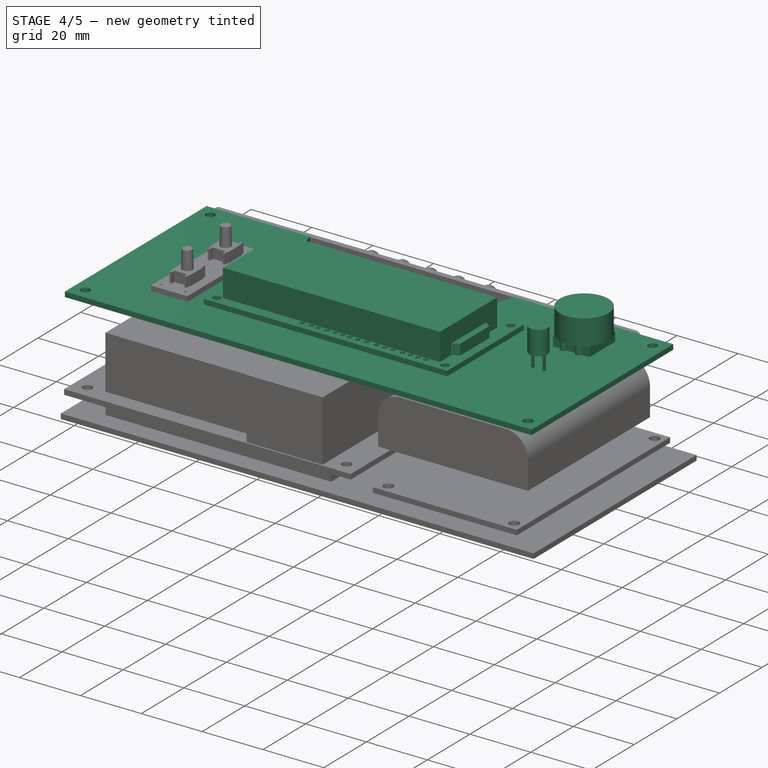
[diagram: stage 4 of 5 — iso view after this stage's code; geometry added in this stage tinted green]
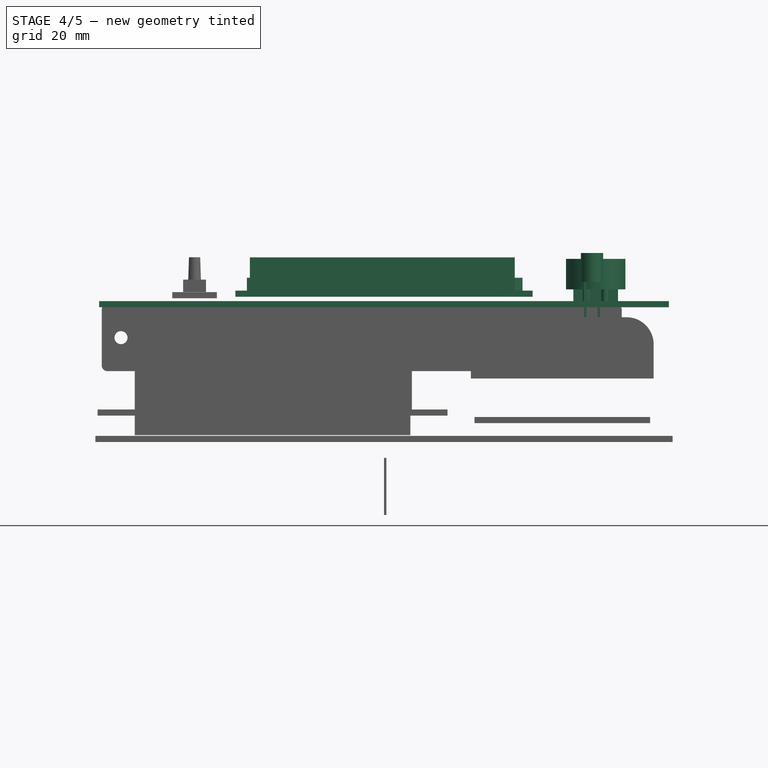
[diagram: stage 4 of 5 — front view after this stage's code; geometry added in this stage tinted green]
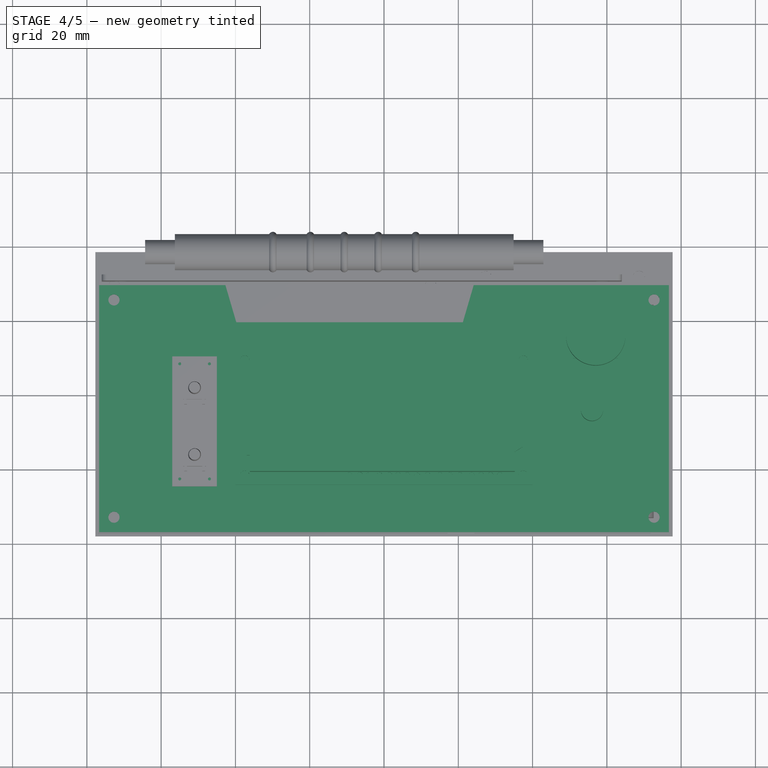
[diagram: stage 4 of 5 — top view after this stage's code; geometry added in this stage tinted green]
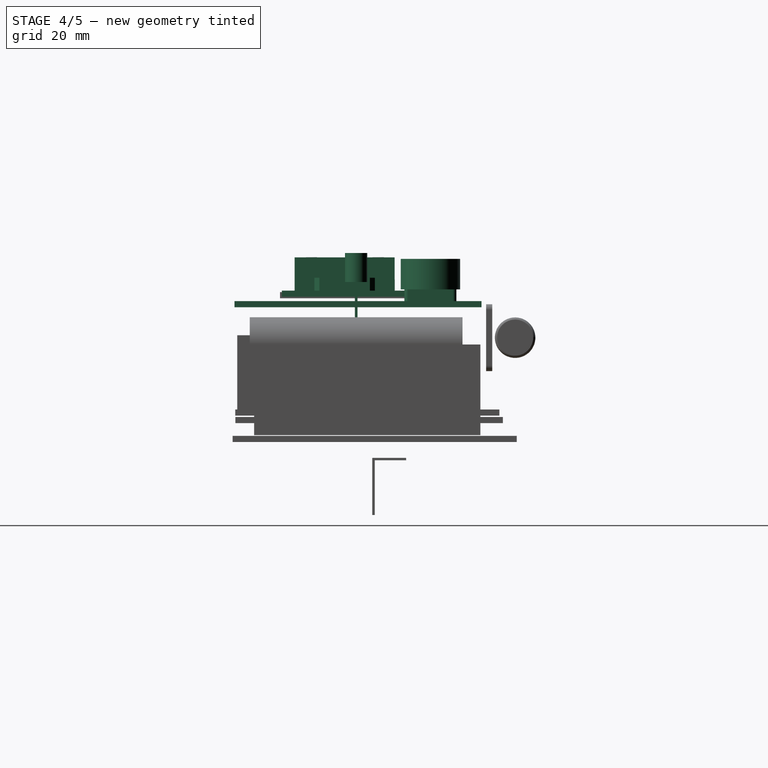
[diagram: stage 4 of 5 — right view after this stage's code; geometry added in this stage tinted green]
FEATURE [Part::Feature] Pad010002001002  label="LongPin3"
  Placement = pos=(4,23.78,28.42) rot=(0.57735,0.57735,0.57735;2.0944rad)
  shape: bbox 0.65 x 9.1 x 15.4 mm, 8 faces (baked)
FEATURE [Part::Feature] Pad010002001003  label="LongPin4"
  Placement = pos=(-67.4,23.78,28.42) rot=(0.57735,0.57735,0.57735;2.0944rad)
  shape: bbox 0.65 x 9.1 x 15.4 mm, 8 faces (baked)
FEATURE [Part::Feature] Pad010002001004  label="ShortPin3"
  Placement = pos=(4,26.2,26.1) rot=(0.57735,0.57735,0.57735;2.0944rad)
  shape: bbox 0.65 x 6.6 x 13.1 mm, 8 faces (baked)
FEATURE [Part::Feature] Pad010002001005  label="ShortPin4"
  Placement = pos=(-67.4,26.2,26.1) rot=(0.57735,0.57735,0.57735;2.0944rad)
  shape: bbox 0.65 x 6.6 x 13.1 mm, 8 faces (baked)
FEATURE [App::DocumentObjectGroup] Group  label="MainBoard"
  Group = -> [Fusion004,Pad010002001002,Pad010002001003,Pad010002001004,Pad010002001005,Pad010,Pad010002]
FEATURE [Sketcher::SketchObject] Sketch014
  expr: Constraints[14] = Data.DisplayHoleOffset
  expr: Constraints[13] = Data.DisplayHoleOffset
  expr: Constraints[12] = Data.DisplayHoleDiam / 2
  expr: Constraints[11] = Data.DisplayBoardLength
  expr: Constraints[10] = Data.DisplayBoardWidth
  sketch-geometry (24):
    g0: LineSegment StartX=-40 StartY=18 StartZ=0 EndX=40 EndY=18 EndZ=0
    g1: LineSegment StartX=40 StartY=18 StartZ=0 EndX=40 EndY=-18 EndZ=0
    g2: LineSegment StartX=40 StartY=-18 StartZ=0 EndX=-40 EndY=-18 EndZ=0
    g3: LineSegment StartX=-40 StartY=-18 StartZ=0 EndX=-40 EndY=18 EndZ=0
    g4: Circle CenterX=-37.5 CenterY=15.5 CenterZ=0 NormalX=0 NormalY=0 NormalZ=1 Radius=1.25
    g5: Circle CenterX=-37.5 CenterY=-15.5 CenterZ=0 NormalX=0 NormalY=0 NormalZ=1 Radius=1.25
    g6: Circle CenterX=37.5 CenterY=-15.5 CenterZ=0 NormalX=0 NormalY=0 NormalZ=1 Radius=1.25
    g7: Circle CenterX=37.5 CenterY=15.5 CenterZ=0 NormalX=0 NormalY=0 NormalZ=1 Radius=1.25
    g8: Circle CenterX=-31.1979 CenterY=15.46 CenterZ=0 NormalX=0 NormalY=0 NormalZ=1 Radius=0.75
    g9: Circle CenterX=-28.6579 CenterY=15.46 CenterZ=0 NormalX=0 NormalY=0 NormalZ=1 Radius=0.75
    g10: Circle CenterX=-26.1179 CenterY=15.46 CenterZ=0 NormalX=0 NormalY=0 NormalZ=1 Radius=0.75
    g11: Circle CenterX=-23.5779 CenterY=15.46 CenterZ=0 NormalX=0 NormalY=0 NormalZ=1 Radius=0.75
    g12: Circle CenterX=-20.4137 CenterY=15.46 CenterZ=0 NormalX=0 NormalY=0 NormalZ=1 Radius=0.75
    g13: Circle CenterX=-17.7079 CenterY=15.46 CenterZ=0 NormalX=0 NormalY=0 NormalZ=1 Radius=0.75
    g14: Circle CenterX=-15.0363 CenterY=15.46 CenterZ=0 NormalX=0 NormalY=0 NormalZ=1 Radius=0.75
    g15: Circle CenterX=-11.714 CenterY=15.46 CenterZ=0 NormalX=0 NormalY=0 NormalZ=1 Radius=0.75
    g16: Circle CenterX=-8.90538 CenterY=15.5409 CenterZ=0 NormalX=0 NormalY=0 NormalZ=1 Radius=0.75
    g17: Circle CenterX=-6.26805 CenterY=15.4724 CenterZ=0 NormalX=0 NormalY=0 NormalZ=1 Radius=0.75
    g18: Circle CenterX=-3.76772 CenterY=15.4381 CenterZ=0 NormalX=0 NormalY=0 NormalZ=1 Radius=0.75
    g19: Circle CenterX=-1.4044 CenterY=15.4724 CenterZ=0 NormalX=0 NormalY=0 NormalZ=1 Radius=0.75
    g20: Circle CenterX=1.19868 CenterY=15.4724 CenterZ=0 NormalX=0 NormalY=0 NormalZ=1 Radius=0.75
    g21: Circle CenterX=4.1898 CenterY=15.5102 CenterZ=0 NormalX=0 NormalY=0 NormalZ=1 Radius=0.75
    g22: Circle CenterX=6.48462 CenterY=15.4075 CenterZ=0 NormalX=0 NormalY=0 NormalZ=1 Radius=0.75
    g23: Circle CenterX=9.3617 CenterY=15.476 CenterZ=0 NormalX=0 NormalY=0 NormalZ=1 Radius=0.75
  constraints (38):
    c: Coincident(g0,g1)
    c: Coincident(g1,g2)
    c: Coincident(g2,g3)
    c: Coincident(g3,g0)
    c: Horizontal(g0)
    c: Horizontal(g2)
    c: Vertical(g1)
    c: Vertical(g3)
    c: Symmetric(g0,g0,g-2)
    c: Symmetric(g2,g0,g-1)
    c: DistanceX(g0,g0) = 80
    c: DistanceY(g3,g3) = 36
    c: Radius(g4) = 1.25
    c: DistanceX(g0,g4) = 2.5
    c: DistanceY(g4,g0) = 2.5
    c: Equal(g4,g5) = 1.25
    c: Equal(g4,g7) = 1.25
    c: Symmetric(g4,g5,g-1)
    c: Symmetric(g5,g6,g-2)
    c: Equal(g5,g6)
    c: Symmetric(g7,g4,g-2)
    c: Radius(g8) = 0.75
    c: Equal(g8,g9) = 0.75
    c: Equal(g9,g10)
    c: Equal(g10,g11)
    c: Equal(g11,g12)
    c: Equal(g12,g13)
    c: Equal(g13,g14)
    c: Equal(g14,g15)
    c: Equal(g15,g16)
    c: Equal(g16,g17)
    c: Equal(g17,g18)
    c: Equal(g18,g19)
    c: Equal(g19,g20)
    c: Equal(g20,g21)
    c: DistanceX(g8,g9) = 2.54
    c: DistanceX(g9,g10) = 2.54
    c: DistanceX(g10,g11) = 2.54
FEATURE [PartDesign::Pad] Pad010002001006  label="DisplayBoard"
  Length = 1.65
  Length2 = 100
  Sketch = -> Sketch014
  Type = 0
  expr: Length = Data.PCBThick
FEATURE [Sketcher::SketchObject] Sketch015
  Placement = pos=(0.45,1.1,0) rot=(0,0,1;0rad)
  expr: Constraints[9] = Data.DisplayBodyWidth
  expr: Constraints[8] = Data.DisplayBodyLength
  sketch-geometry (4):
    g0: LineSegment StartX=-35.65 StartY=13.45 StartZ=0 EndX=35.65 EndY=13.45 EndZ=0
    g1: LineSegment StartX=35.65 StartY=13.45 StartZ=0 EndX=35.65 EndY=-13.45 EndZ=0
    g2: LineSegment StartX=35.65 StartY=-13.45 StartZ=0 EndX=-35.65 EndY=-13.45 EndZ=0
    g3: LineSegment StartX=-35.65 StartY=-13.45 StartZ=0 EndX=-35.65 EndY=13.45 EndZ=0
  constraints (12):
    c: Coincident(g0,g1)
    c: Coincident(g1,g2)
    c: Coincident(g2,g3)
    c: Coincident(g3,g0)
    c: Horizontal(g0)
    c: Horizontal(g2)
    c: Vertical(g1)
    c: Vertical(g3)
    c: DistanceY(g3,g3) = 26.9
    c: DistanceX(g0,g0) = 71.3
    c: Symmetric(g0,g0,g-2)
    c: Symmetric(g0,g2,g-1)
FEATURE [PartDesign::Pad] Pad010002001007  label="DisplayBody"
  Length = 10.6
  Length2 = 100
  Placement = pos=(0.45,1.1,0) rot=(0,0,1;0rad)
  Sketch = -> Sketch015
  Type = 0
  expr: Length = Data.DisplayHeight
FEATURE [Sketcher::SketchObject] Sketch016
  Placement = pos=(4.5,1.1,0) rot=(0,0,1;0rad)
  expr: Constraints[28] = Data.DisplayBodyLength
  sketch-geometry (10):
    g0: LineSegment StartX=31.5 StartY=13.45 StartZ=0 EndX=-31.5 EndY=13.45 EndZ=0
    g1: LineSegment StartX=-31.5 StartY=13.45 StartZ=0 EndX=-41.8 EndY=6.8 EndZ=0
    g2: LineSegment StartX=-41.8 StartY=6.8 StartZ=0 EndX=-41.8 EndY=-6.8 EndZ=0
    g3: LineSegment StartX=-41.8 StartY=-6.8 StartZ=0 EndX=-31.5 EndY=-13.45 EndZ=0
    g4: LineSegment StartX=-31.5 StartY=-13.45 StartZ=0 EndX=31.5 EndY=-13.45 EndZ=0
    g5: LineSegment StartX=31.5 StartY=-13.45 StartZ=0 EndX=31.5 EndY=-9.1 EndZ=0
    g6: LineSegment StartX=31.5 StartY=-9.1 StartZ=0 EndX=32.4 EndY=-9.1 EndZ=0
    g7: LineSegment StartX=32.4 StartY=-9.1 StartZ=0 EndX=32.4 EndY=9.1 EndZ=0
    g8: LineSegment StartX=32.4 StartY=9.1 StartZ=0 EndX=31.5 EndY=9.1 EndZ=0
    g9: LineSegment StartX=31.5 StartY=9.1 StartZ=0 EndX=31.5 EndY=13.45 EndZ=0
  constraints (29):
    c: Horizontal(g0)
    c: Coincident(g0,g1)
    c: Coincident(g1,g2)
    c: Vertical(g2)
    c: Coincident(g2,g3)
    c: Coincident(g3,g4)
    c: Coincident(g4,g5)
    c: Vertical(g5)
    c: Coincident(g5,g6)
    c: Horizontal(g6)
    c: Coincident(g6,g7)
    c: Vertical(g7)
    c: Coincident(g7,g8)
    c: Horizontal(g8)
    c: Coincident(g8,g9)
    c: Coincident(g9,g0)
    c: Vertical(g9)
    c: Symmetric(g6,g7,g-1)
    c: Symmetric(g5,g8,g-1)
    c: Symmetric(g4,g0,g-1)
    c: Symmetric(g3,g0,g-1)
    c: Symmetric(g2,g1,g-1)
    c: DistanceY(g7,g7) = 18.2
    c: DistanceX(g8,g8) = 0.9
    c: DistanceY(g2,g2) = 13.6
    c: DistanceX(g0,g0) = 63
    c: DistanceX(g1,g7) = 74.2
    c: Symmetric(g3,g4,g-2)
    c: DistanceY(g4,g0) = 26.9
FEATURE [PartDesign::Pad] Pad010002001008  label="DisplayInsert"
  Length = 5.14
  Length2 = 100
  Placement = pos=(4.5,1.1,0) rot=(0,0,1;0rad)
  Sketch = -> Sketch016
  Type = 0
  expr: Length = Data.DisplayStepHeight
FEATURE [Part::Fuse] Fusion005
  Base = -> Pad010002001006
  Tool = -> Pad010002001007
FEATURE [Part::Fuse] Fusion006  label="Display"
  Base = -> Fusion005
  Placement = pos=(0,-7,44) rot=(0,0,1;3.14159rad)
  Tool = -> Pad010002001008
FEATURE [Sketcher::SketchObject] Sketch017
  Placement = pos=(0,-4.5,41.2) rot=(0,0,1;0rad)
  expr: Constraints[6] = Data.InnerLength - 2
  expr: Placement.Base.z = Data.BoxHeight - 10
  expr: Constraints[5] = Data.InnerWidth - 10
  sketch-geometry (12):
    g0: LineSegment StartX=76.7 StartY=33.25 StartZ=0 EndX=76.7 EndY=-33.25 EndZ=0
    g1: LineSegment StartX=76.7 StartY=-33.25 StartZ=0 EndX=-76.7 EndY=-33.25 EndZ=0
    g2: LineSegment StartX=-76.7 StartY=-33.25 StartZ=0 EndX=-76.7 EndY=33.25 EndZ=0
    g3: Circle CenterX=-72.7 CenterY=29.25 CenterZ=0 NormalX=0 NormalY=0 NormalZ=1 Radius=1.5
    g4: Circle CenterX=-72.7 CenterY=-29.25 CenterZ=0 NormalX=0 NormalY=0 NormalZ=1 Radius=1.5
    g5: Circle CenterX=72.7 CenterY=29.25 CenterZ=0 NormalX=0 NormalY=0 NormalZ=1 Radius=1.5
    g6: Circle CenterX=72.7 CenterY=-29.25 CenterZ=0 NormalX=0 NormalY=0 NormalZ=1 Radius=1.5
    g7: LineSegment StartX=-42.7 StartY=33.25 StartZ=0 EndX=-39.7728 EndY=23.25 EndZ=0
    g8: LineSegment StartX=-39.7728 StartY=23.25 StartZ=0 EndX=21.2272 EndY=23.25 EndZ=0
    g9: LineSegment StartX=21.2272 StartY=23.25 StartZ=0 EndX=24.1545 EndY=33.25 EndZ=0
    g10: LineSegment StartX=-76.7 StartY=33.25 StartZ=0 EndX=-42.7 EndY=33.25 EndZ=0
    g11: LineSegment StartX=24.1545 StartY=33.25 StartZ=0 EndX=76.7 EndY=33.25 EndZ=0
  constraints (32):
    c: Coincident(g0,g1)
    c: Coincident(g1,g2)
    c: Horizontal(g1)
    c: Vertical(g0)
    c: Vertical(g2)
    c: DistanceY(g0,g0) = 66.5
    c: DistanceX(g1,g1) = 153.4
    c: Symmetric(g2,g0,g-2)
    c: Symmetric(g2,g1,g-1)
    c: Radius(g3) = 1.5
    c: Equal(g3,g4) = 3
    c: Equal(g3,g5) = 3
    c: Equal(g3,g6) = 3
    c: Symmetric(g3,g4,g-1)
    c: Symmetric(g3,g5,g-2)
    c: Symmetric(g4,g6,g-2)
    c: DistanceX(g2,g3) = 4
    c: DistanceY(g3,g2) = 4
    c: Coincident(g7,g8)
    c: Horizontal(g8)
    c: Coincident(g8,g9)
    c: Horizontal(g10)
    c: Coincident(g11,g9)
    c: Horizontal(g11)
    c: Equal(g7,g9)
    c: DistanceX(g2,g7) = 34
    c: DistanceX(g7,g8) = 61
    c: DistanceY(g8,g9) = 10
    c: Coincident(g10,g7)
    c: Coincident(g2,g10)
    c: Coincident(g11,g0)
    c: Angle(g10,g7) = 1.85556
FEATURE [PartDesign::Pad] Pad010002001009  label="FalsePanel"
  Length = 1.65
  Length2 = 100
  Placement = pos=(0,-4.5,41.2) rot=(0,0,1;0rad)
  Sketch = -> Sketch017
  Type = 0
  expr: Length = Data.PCBThick
FEATURE [Sketcher::SketchObject] Sketch018
  Placement = pos=(57,15,46) rot=(0,0,1;0rad)
  sketch-geometry (1):
    g0: Circle CenterX=0 CenterY=0 CenterZ=0 NormalX=0 NormalY=0 NormalZ=1 Radius=8
  constraints (2):
    c: Coincident(g0,g-1)
    c: Radius(g0) = 8
FEATURE [PartDesign::Pad] Pad010002001010
  Length = 8.2
  Length2 = 100
  Placement = pos=(57,15,46) rot=(0,0,1;0rad)
  Sketch = -> Sketch018
  Type = 0
FEATURE [Sketcher::SketchObject] Sketch019
  Placement = pos=(57,15,42.5) rot=(0,0,1;0rad)
  sketch-geometry (8):
    g0: LineSegment StartX=-6 StartY=6 StartZ=0 EndX=6 EndY=6 EndZ=0
    g1: LineSegment StartX=6 StartY=6 StartZ=0 EndX=6 EndY=-6 EndZ=0
    g2: LineSegment StartX=6 StartY=-6 StartZ=0 EndX=-6 EndY=-6 EndZ=0
    g3: LineSegment StartX=-6 StartY=-6 StartZ=0 EndX=-6 EndY=6 EndZ=0
    g4: Circle CenterX=-2.5 CenterY=6 CenterZ=0 NormalX=0 NormalY=0 NormalZ=1 Radius=1
    g5: Circle CenterX=2.5 CenterY=6 CenterZ=0 NormalX=0 NormalY=0 NormalZ=1 Radius=1
    g6: Circle CenterX=-2.5 CenterY=-6 CenterZ=0 NormalX=0 NormalY=0 NormalZ=1 Radius=1
    g7: Circle CenterX=2.5 CenterY=-6 CenterZ=0 NormalX=0 NormalY=0 NormalZ=1 Radius=1
  constraints (23):
    c: Coincident(g0,g1)
    c: Coincident(g1,g2)
    c: Coincident(g2,g3)
    c: Coincident(g3,g0)
    c: Horizontal(g2)
    c: Vertical(g1)
    c: Vertical(g3)
    c: Symmetric(g0,g0,g-2)
    c: Equal(g0,g3)
    c: DistanceX(g0,g0) = 12
    c: Symmetric(g0,g2,g-1)
    c: PointOnObject(g4,g0)
    c: Radius(g4) = 1
    c: Equal(g4,g5) = 1
    c: PointOnObject(g5,g0)
    c: Symmetric(g4,g5,g-2)
    c: Equal(g4,g6) = 1
    c: PointOnObject(g7,g2)
    c: PointOnObject(g6,g2)
    c: Symmetric(g6,g7,g-2)
    c: DistanceX(g4,g5) = 5
    c: DistanceX(g6,g7) = 5
    c: Equal(g7,g6)
FEATURE [PartDesign::Pad] Pad010002001011
  Length = 3.5
  Length2 = 100
  Placement = pos=(57,15,42.5) rot=(0,0,1;0rad)
  Sketch = -> Sketch019
  Type = 0
FEATURE [Part::Fuse] Fusion008  label="CountLed"
  Base = -> Pad010002001012
  Placement = pos=(56,-5,38) rot=(0,0,1;0rad)
  Tool = -> Pad010002001013
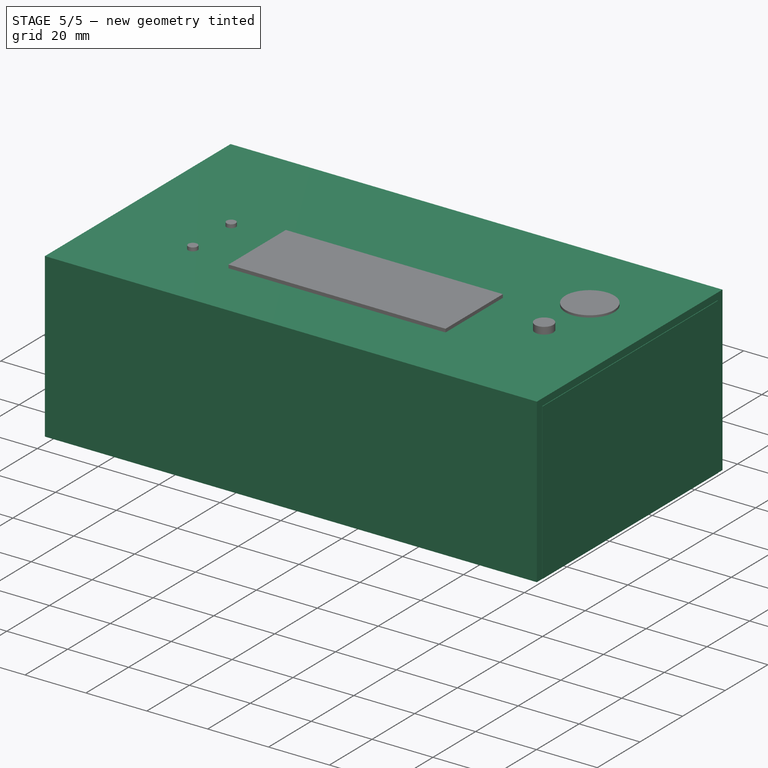
[diagram: stage 5 of 5 — iso view after this stage's code; geometry added in this stage tinted green]
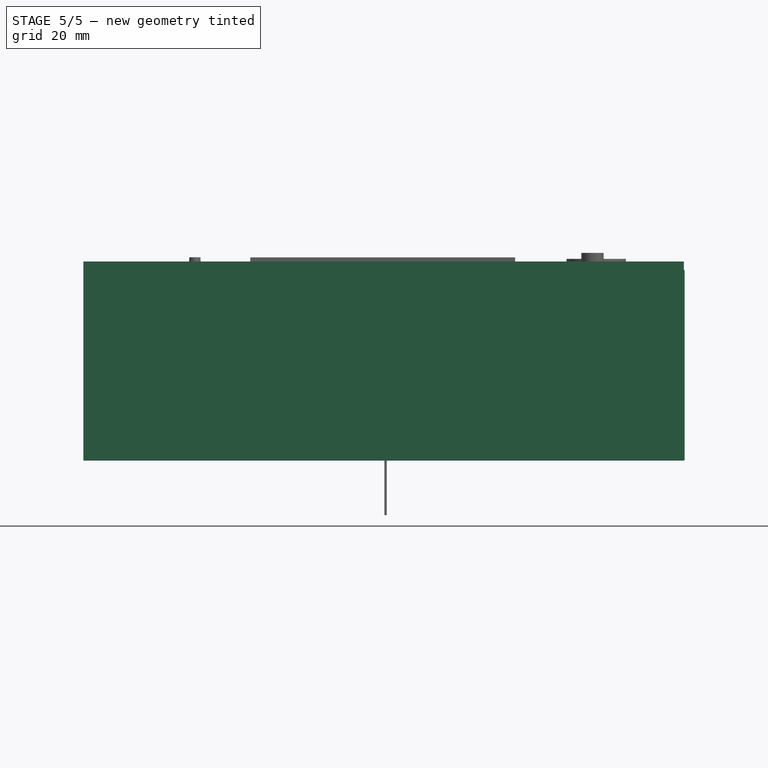
[diagram: stage 5 of 5 — front view after this stage's code; geometry added in this stage tinted green]
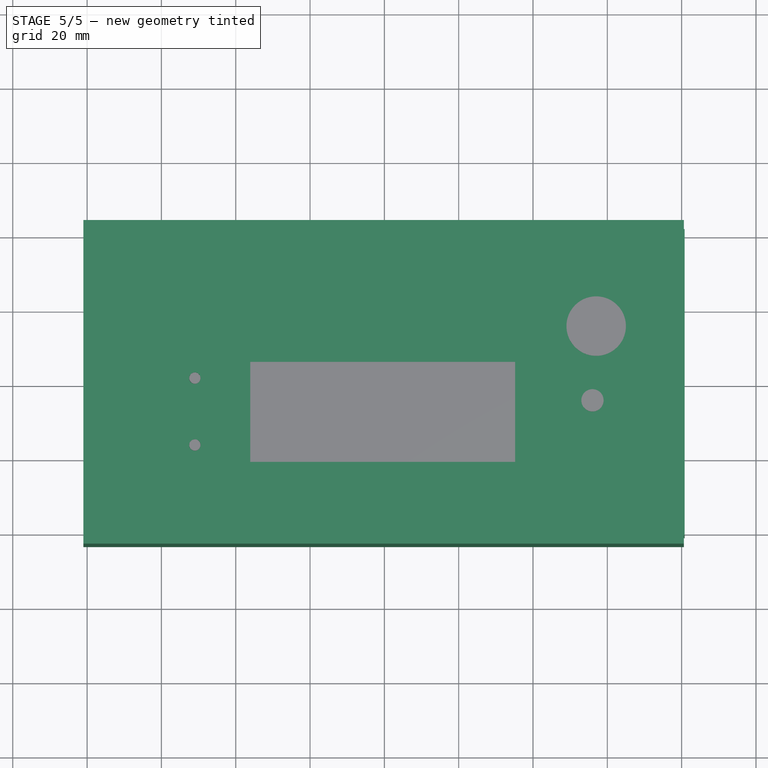
[diagram: stage 5 of 5 — top view after this stage's code; geometry added in this stage tinted green]
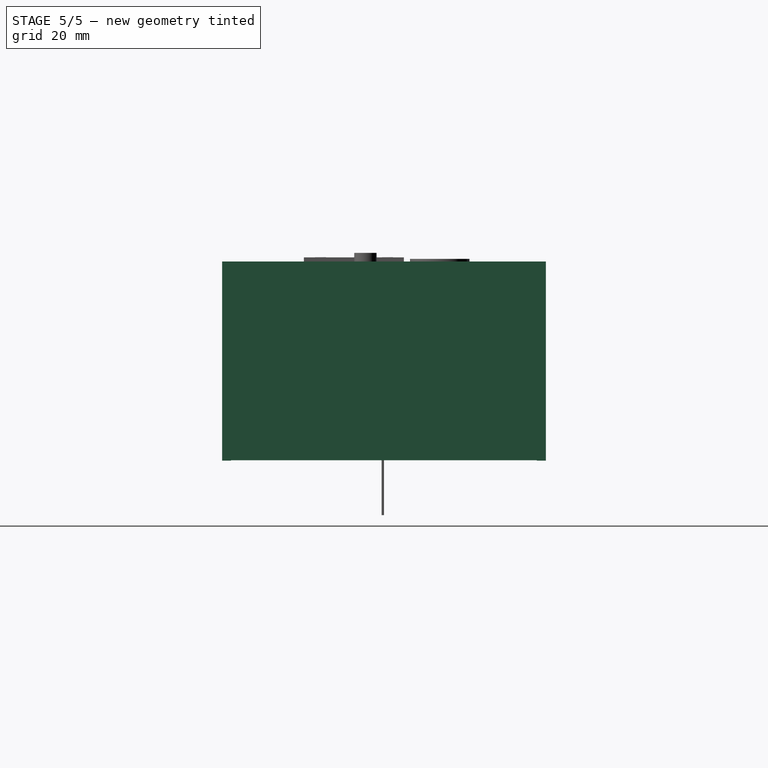
[diagram: stage 5 of 5 — right view after this stage's code; geometry added in this stage tinted green]
FEATURE [Spreadsheet::Sheet] Spreadsheet  label="Data"
  cells = A1=Enclosure; D1=Main Board; G1=Tube; A2=Side Wall; B2(SideWallThick)=2.9; D2=Length; E2(MainBoardLength)=94.2; G2=Tube total length; H2(TubeLength)=107.2; A3=Front wall; B3(FrontWallThick)=3.1; D3=Width; E3(MainBoardWidth)=71.09999999999999; G3=Contact length; H3(TubeContactLength)=8; A4=Cover; B4(CoverThick)=2.4; D4=HoleOffset; E4(BoardHoleOffset)=4.5; G4=Tube diameter; H4(TubeDiameter)=9.699999999999999; A5=Height; B5(BoxHeight)=51.2; D5=Overhead1; E5(BoardOverhead1)=20; A6=Depth; B6(BoxDepth)=46.3; D6=Overhead2; E6(BoardOverhead2)=17.5; G6=Rib diameter; H6(TubeRibDiameter)=10.6; A7=Length; B7(BoxLength)=161.6; D7=SpaceUnder; E7(BoardUnderSpace)=6.9; G7=Rib width; H7(TubeRibWidth)=2.2; A8=Width; B8(BoxWidth)=82.3; D8=TopMargin; E8(BoardTopMargin)=10; G8=Contact diameter; H8(TubeContactDiameter)=6.5; D9=SideMargin; E9(BoardSideMargin)=5.1; G9=Rib Offset; H9(TubeRibOffset)=25.4; A10=InnerWidth; B10(InnerWidth)==B8 - 2 * B2; C10==B10 / 25.5; D10=Space1Length; E10(BoardSpace1Length)=25; A11=InnerLength; B11(InnerLength)==BoxLength - 2 * FrontWallThick; C11==B11 / 25.5; D11=Space1Width; E11(BoardSpace1Width)=50; G11=Tube board length; H11(TubeBoardLength)=140; A12=BottomThick; B12(BottomThick)==B5 - B6; D12=HoleDiameter; E12=3.1; G12=Tube board width; H12(TubeBoardWidth)=18; A13=PCB Thickness; B13(PCBThick)=1.65; G13=Tube board hole diameter; H13(TubeBoardHoleD)=3.5; D14=HoleRadius; E14(BoardHoleRadius)==E12 / 2; D15=CompVolume1Width; E15(CompVolume2Width)==E3 - 2 * E9; G15=Tube board hole offset; H15(TubeBoardHoleOffset)=5.2; D16=CompVolume1Length; E16(CompVolume2Length)==E2 - 2 * E8; G16=Tube Offset; H16(TubeOffset)=11.7; D18=Display; A19=TubeConnectShortLength; B19(TubeConnectShort)=9.1; D19=BoardWidth; E19(DisplayBoardWidth)=80; A20=Tube connector long length; B20(TubeConnectorLong)=15.4; D20=BoardLength; E20(DisplayBoardLength)=36; A21=Tube connector pin thickness; B21(TubeConnectorPinThick)=0.65; D21=BodyWidth; E21(DisplayBodyWidth)=71.3; A22=Tube connector base length; B22(TubeConnectorBaseLen)=5.1; D22=BodyLength; E22(DisplayBodyLength)=26.9; A23=Tube connector base height; B23(TubeConnectorBaseHeight)=2.8; D23=TotalHeight; E23(DisplayHeight)=10.6; A24=Tube connector base width; B24(TubeConnectorBaseWidth)=2.1; D24=StepHeight; E24(DisplayStepHeight)=5.14; D25=RighrMargin; E25(DisplayRightMargin)=3.9; D26=BottomMargin; E26(DisplayBottomMargin)=5.6; D27=LeftMargin; E27=4.8; D28=TopMargin; E28=3.8; D29=BottomSpace; E29(DisplayBottomSpace)=2.7; D30=HoleOffset; E30(DisplayHoleOffset)=2.5; D31=HoleDiameter; E31(DisplayHoleDiam)=2.5; B34==26.97 + 13.97
FEATURE [Sketcher::SketchObject] Sketch
  expr: Constraints[11] = Data.BoxWidth
  expr: Constraints[10] = Data.BoxLength
  sketch-geometry (4):
    g0: LineSegment StartX=-80.8 StartY=41.15 StartZ=0 EndX=80.8 EndY=41.15 EndZ=0
    g1: LineSegment StartX=80.8 StartY=41.15 StartZ=0 EndX=80.8 EndY=-41.15 EndZ=0
    g2: LineSegment StartX=80.8 StartY=-41.15 StartZ=0 EndX=-80.8 EndY=-41.15 EndZ=0
    g3: LineSegment StartX=-80.8 StartY=-41.15 StartZ=0 EndX=-80.8 EndY=41.15 EndZ=0
  constraints (12):
    c: Coincident(g0,g1)
    c: Coincident(g1,g2)
    c: Coincident(g2,g3)
    c: Coincident(g3,g0)
    c: Horizontal(g0)
    c: Horizontal(g2)
    c: Vertical(g1)
    c: Vertical(g3)
    c: Symmetric(g0,g0,g-2)
    c: Symmetric(g0,g1,g-1)
    c: DistanceX(g0,g0) = 161.6
    c: DistanceY(g3,g3) = 82.3
FEATURE [PartDesign::Pad] Pad
  Length = 51.2
  Length2 = 100
  Sketch = -> Sketch
  Type = 0
  expr: Length = Data.BoxHeight
FEATURE [Sketcher::SketchObject] Sketch001
  Placement = pos=(0,0,51.2) rot=(0,0,1;0rad)
  Support = -> Pad [Face6]
  expr: Constraints[11] = Data.InnerWidth
  expr: Constraints[10] = Data.InnerLength
  sketch-geometry (4):
    g0: LineSegment StartX=-77.7 StartY=38.25 StartZ=0 EndX=77.7 EndY=38.25 EndZ=0
    g1: LineSegment StartX=77.7 StartY=38.25 StartZ=0 EndX=77.7 EndY=-38.25 EndZ=0
    g2: LineSegment StartX=77.7 StartY=-38.25 StartZ=0 EndX=-77.7 EndY=-38.25 EndZ=0
    g3: LineSegment StartX=-77.7 StartY=-38.25 StartZ=0 EndX=-77.7 EndY=38.25 EndZ=0
  constraints (12):
    c: Coincident(g0,g1)
    c: Coincident(g1,g2)
    c: Coincident(g2,g3)
    c: Coincident(g3,g0)
    c: Horizontal(g0)
    c: Horizontal(g2)
    c: Vertical(g1)
    c: Vertical(g3)
    c: Symmetric(g0,g0,g-2)
    c: Symmetric(g0,g2,g-1)
    c: DistanceX(g0,g0) = 155.4
    c: DistanceY(g3,g3) = 76.5
FEATURE [PartDesign::Pocket] Pocket  label="Enclosure"
  Length = 46.3
  Sketch = -> Sketch001
  Type = 0
  expr: Length = Data.BoxDepth
FEATURE [Sketcher::SketchObject] Sketch009
  Placement = pos=(-10.7,54,33) rot=(1,0,0;1.5708rad)
  expr: Constraints[9] = Data.TubeDiameter + Data.TubeRibWidth + 1
  expr: Constraints[8] = Data.TubeLength + 4
  sketch-geometry (4):
    g0: LineSegment StartX=-55.6 StartY=6.45 StartZ=0 EndX=55.6 EndY=6.45 EndZ=0
    g1: LineSegment StartX=55.6 StartY=6.45 StartZ=0 EndX=55.6 EndY=-6.45 EndZ=0
    g2: LineSegment StartX=55.6 StartY=-6.45 StartZ=0 EndX=-55.6 EndY=-6.45 EndZ=0
    g3: LineSegment StartX=-55.6 StartY=-6.45 StartZ=0 EndX=-55.6 EndY=6.45 EndZ=0
  constraints (12):
    c: Coincident(g0,g1)
    c: Coincident(g1,g2)
    c: Coincident(g2,g3)
    c: Coincident(g3,g0)
    c: Horizontal(g0)
    c: Horizontal(g2)
    c: Vertical(g1)
    c: Vertical(g3)
    c: DistanceX(g0,g0) = 111.2
    c: DistanceY(g3,g3) = 12.9
    c: Symmetric(g0,g0,g-2)
    c: Symmetric(g0,g2,g-1)
FEATURE [PartDesign::Pad] Pad007  label="EnclosureTubeCutoutDef"
  Length = 30
  Length2 = 100
  Placement = pos=(-10.7,54,33) rot=(1,0,0;1.5708rad)
  Sketch = -> Sketch009
  Type = 0
FEATURE [PartDesign::Fillet] Fillet001  label="TubeCutout"
  Base = -> Pad007 [Edge1,Edge8,Edge2,Edge5]
  Placement = pos=(-10.7,54,33) rot=(1,0,0;1.5708rad)
  Radius = 3
FEATURE [Part::Cut] Cut  label="EnclosureBox"
  Base = -> Pocket
  Tool = -> Fillet001
FEATURE [Sketcher::SketchObject] Sketch010
  Placement = pos=(-81,0,25.5) rot=(0.57735,0.57735,0.57735;2.0944rad)
  expr: Constraints[18] = Data.BoxHeight
  expr: Constraints[16] = Data.CoverThick
  expr: Constraints[19] = Data.BoxWidth
  sketch-geometry (8):
    g0: LineSegment StartX=-43.55 StartY=-25.6 StartZ=0 EndX=-43.55 EndY=28 EndZ=0
    g1: LineSegment StartX=-43.55 StartY=28 StartZ=0 EndX=43.55 EndY=28 EndZ=0
    g2: LineSegment StartX=43.55 StartY=28 StartZ=0 EndX=43.55 EndY=-25.6 EndZ=0
    g3: LineSegment StartX=43.55 StartY=-25.6 StartZ=0 EndX=41.15 EndY=-25.6 EndZ=0
    g4: LineSegment StartX=41.15 StartY=-25.6 StartZ=0 EndX=41.15 EndY=25.6 EndZ=0
    g5: LineSegment StartX=41.15 StartY=25.6 StartZ=0 EndX=-41.15 EndY=25.6 EndZ=0
    g6: LineSegment StartX=-41.15 StartY=25.6 StartZ=0 EndX=-41.15 EndY=-25.6 EndZ=0
    g7: LineSegment StartX=-41.15 StartY=-25.6 StartZ=0 EndX=-43.55 EndY=-25.6 EndZ=0
  constraints (22):
    c: Vertical(g0)
    c: Coincident(g0,g1)
    c: Horizontal(g1)
    c: Coincident(g1,g2)
    c: Vertical(g2)
    c: Coincident(g2,g3)
    c: Horizontal(g3)
    c: Coincident(g3,g4)
    c: Coincident(g5,g6)
    c: Vertical(g6)
    c: Coincident(g6,g7)
    c: Coincident(g7,g0)
    c: Horizontal(g7)
    c: DistanceX(g7,g7) = 2.4
    c: Symmetric(g0,g1,g-2)
    c: Symmetric(g5,g4,g-2)
    c: DistanceY(g5,g0) = 2.4
    c: Coincident(g5,g4)
    c: DistanceY(g6,g6) = 51.2
    c: DistanceX(g5,g5) = 82.3
    c: Symmetric(g6,g3,g-2)
    c: Symmetric(g4,g3,g-1)
FEATURE [PartDesign::Pad] Pad008  label="Cover"
  Length = 161.6
  Length2 = 100
  Placement = pos=(-81,0,25.5) rot=(0.57735,0.57735,0.57735;2.0944rad)
  Sketch = -> Sketch010
  Type = 0
  expr: Length = Data.BoxLength
FEATURE [Sketcher::SketchObject] Sketch011
  Placement = pos=(-10.7,54,33) rot=(1,0,0;1.5708rad)
  expr: Constraints[9] = Data.TubeDiameter + Data.TubeRibWidth + 1
  expr: Constraints[8] = Data.TubeLength - 2 * Data.TubeContactLength + 4
  sketch-geometry (4):
    g0: LineSegment StartX=-47.6 StartY=6.45 StartZ=0 EndX=47.6 EndY=6.45 EndZ=0
    g1: LineSegment StartX=47.6 StartY=6.45 StartZ=0 EndX=47.6 EndY=-6.45 EndZ=0
    g2: LineSegment StartX=47.6 StartY=-6.45 StartZ=0 EndX=-47.6 EndY=-6.45 EndZ=0
    g3: LineSegment StartX=-47.6 StartY=-6.45 StartZ=0 EndX=-47.6 EndY=6.45 EndZ=0
  constraints (12):
    c: Coincident(g0,g1)
    c: Coincident(g1,g2)
    c: Coincident(g2,g3)
    c: Coincident(g3,g0)
    c: Horizontal(g0)
    c: Horizontal(g2)
    c: Vertical(g1)
    c: Vertical(g3)
    c: DistanceX(g0,g0) = 95.2
    c: DistanceY(g3,g3) = 12.9
    c: Symmetric(g0,g0,g-2)
    c: Symmetric(g0,g2,g-1)
FEATURE [PartDesign::Pad] Pad009  label="CoverTubeCutoutDef"
  Length = 30
  Length2 = 100
  Placement = pos=(-10.7,54,33) rot=(1,0,0;1.5708rad)
  Sketch = -> Sketch011
  Type = 0
FEATURE [PartDesign::Fillet] Fillet002  label="TubeCutout001"
  Base = -> Pad009 [Edge1,Edge8,Edge2,Edge5]
  Placement = pos=(-10.7,54,33) rot=(1,0,0;1.5708rad)
  Radius = 3
FEATURE [Part::Cut] Cut001  label="BoxCover"
  Base = -> Pad008
  Tool = -> Fillet002
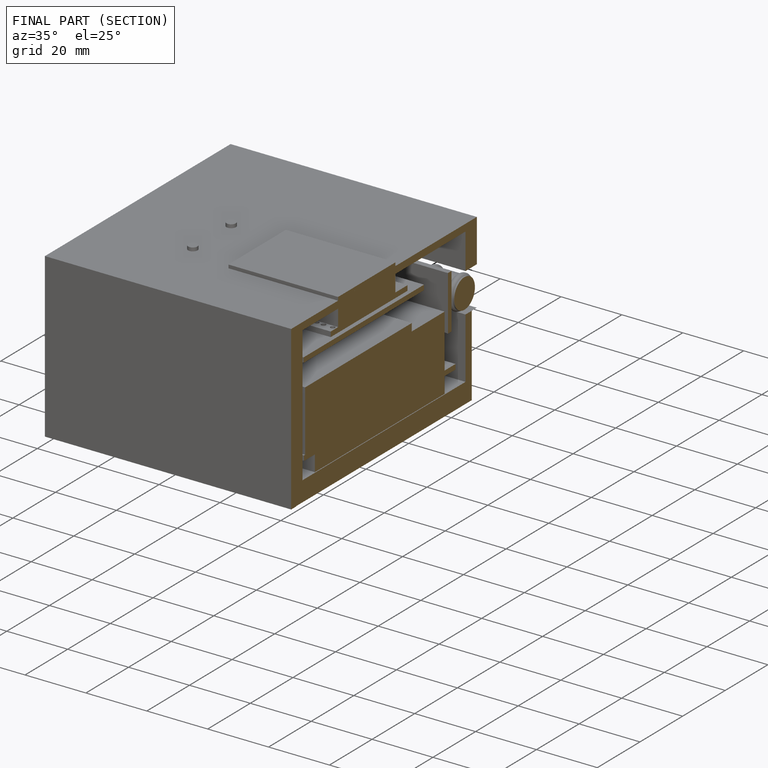
[diagram: finished part — half-section view (interior)]
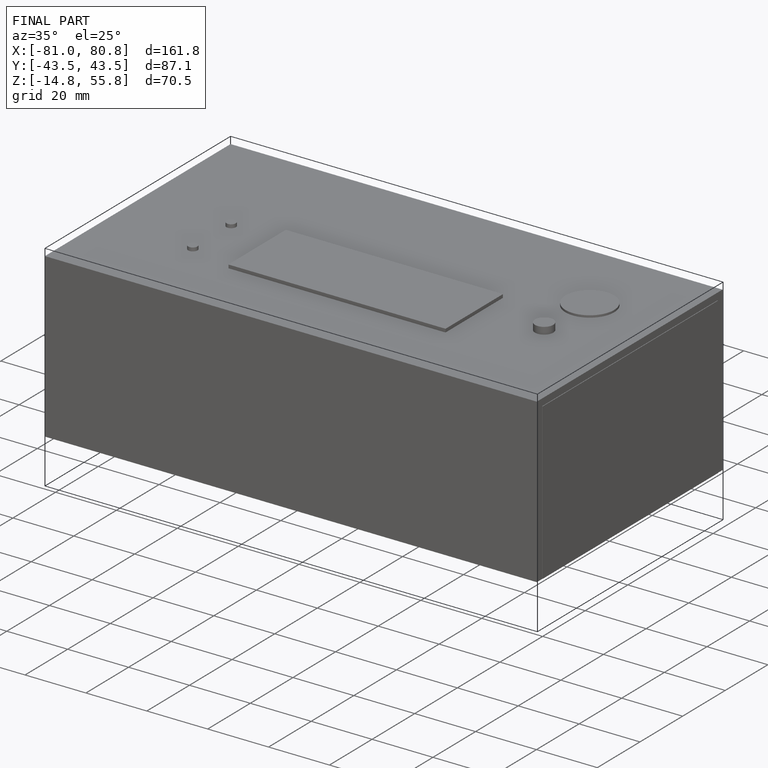
[diagram: finished part — iso view with bounding-box wireframe]
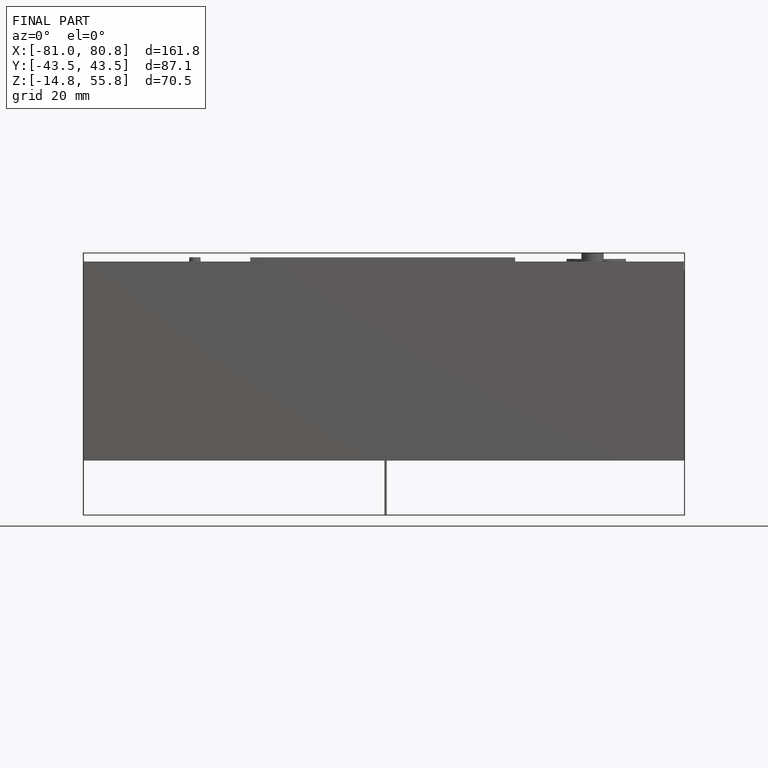
[diagram: finished part — front view with bounding-box wireframe]
